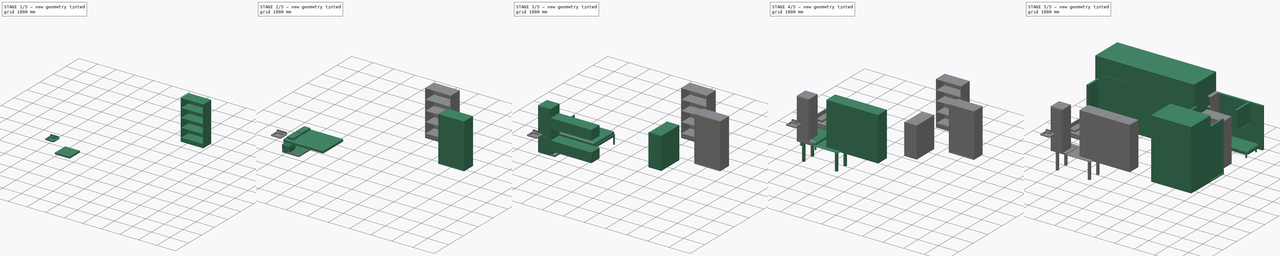
[diagram: build sequence overview — one tinted view per stage of 5, left to right]
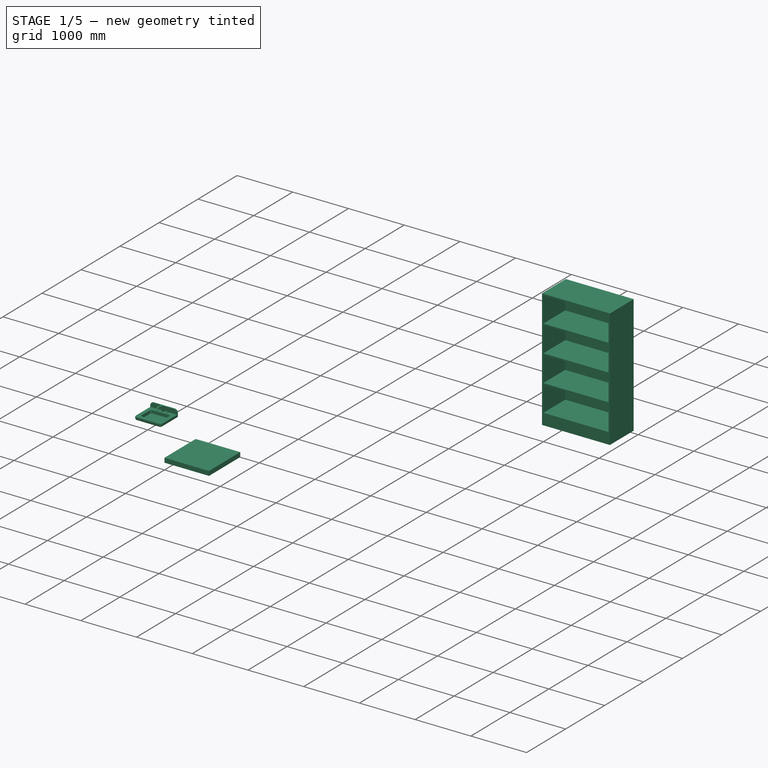
[diagram: stage 1 of 5 — iso view after this stage's code; geometry added in this stage tinted green]
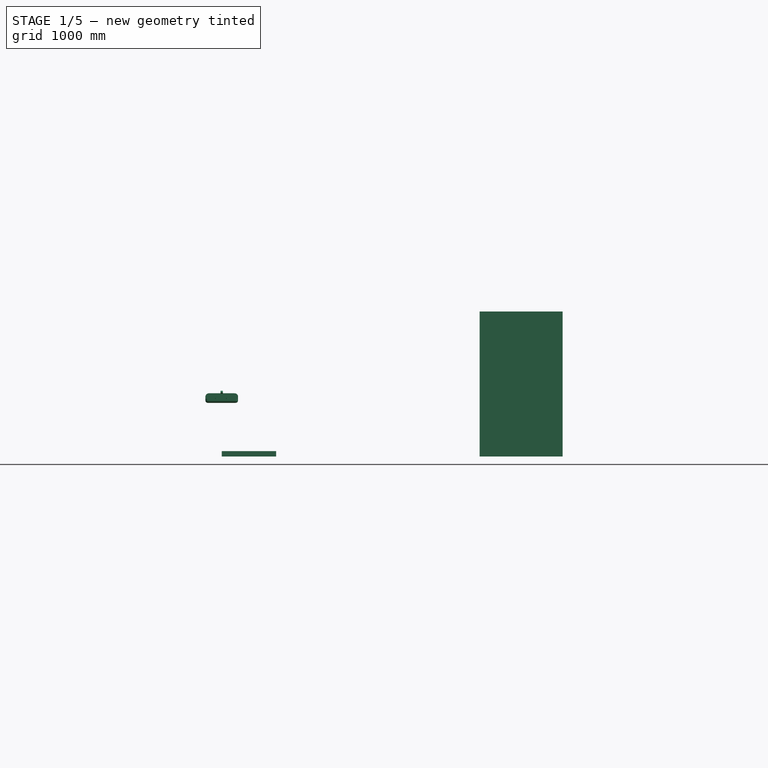
[diagram: stage 1 of 5 — front view after this stage's code; geometry added in this stage tinted green]
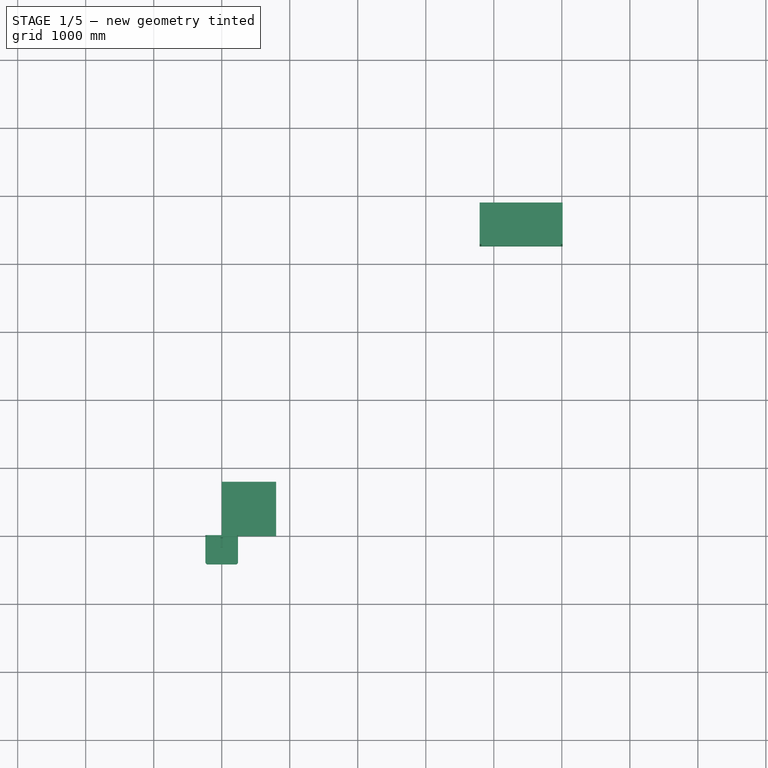
[diagram: stage 1 of 5 — top view after this stage's code; geometry added in this stage tinted green]
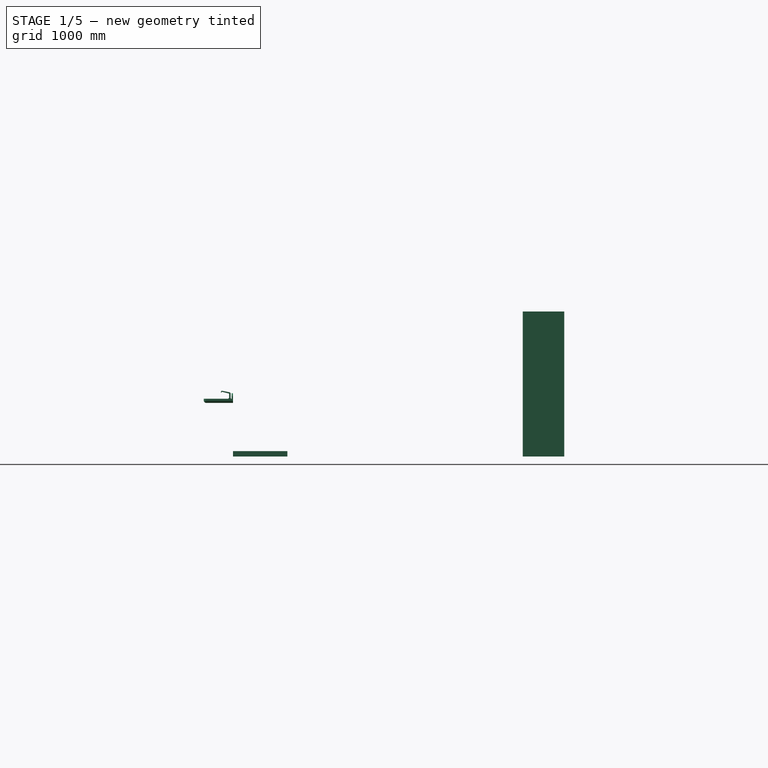
[diagram: stage 1 of 5 — right view after this stage's code; geometry added in this stage tinted green]
FCSTD DOCUMENT  (FreeCAD 0.18R16131 (Git))
Label: appart
License: All rights reserved
LicenseURL: http://en.wikipedia.org/wiki/All_rights_reserved
objects: Sketcher::SketchObject×31, Part::Box×23, PartDesign::Pad×19, Part::FeaturePython×17, PartDesign::Fillet×17, Part::Cut×10, PartDesign::Body×7, Part::Part2DObjectPython×6, Part::Fillet×3, PartDesign::Pocket×3, PartDesign::Plane×3, Part::MultiFuse×1, Part::Compound×1, PartDesign::LinearPattern×1, App::DocumentObjectGroup×1
note: 164 computed .brp shape members not serialized (recipe doc carries the construction recipe); baked Part::Feature solids carry a one-line shape summary decoded from their .brp

FEATURE [PartDesign::Body] Body010  label="WallHungToilet"
  Group = -> [Sketch194,Pad014,Fillet013,Sketch195,Fillet014,Pad015,Fillet015]
  Origin = -> Origin010
  Placement = pos=(1727,3999,0) rot=(0,0,1;4.71239rad)
  Tip = -> Fillet015
FEATURE [Sketcher::SketchObject] Sketch196  label="Sketch197"
  MapMode = 5
  Support = -> [XY_Plane011]
  sketch-geometry (4):
    g0: LineSegment StartX=0 StartY=0 StartZ=0 EndX=800 EndY=0 EndZ=0
    g1: LineSegment StartX=800 StartY=0 StartZ=0 EndX=800 EndY=800 EndZ=0
    g2: LineSegment StartX=800 StartY=800 StartZ=0 EndX=0 EndY=800 EndZ=0
    g3: LineSegment StartX=0 StartY=800 StartZ=0 EndX=0 EndY=0 EndZ=0
  constraints (11):
    c: Coincident(g0,g1)
    c: Coincident(g1,g2)
    c: Coincident(g2,g3)
    c: Coincident(g3,g0)
    c: Horizontal(g0)
    c: Horizontal(g2)
    c: Vertical(g1)
    c: Vertical(g3)
    c: Coincident(g0,g-1)
    c: DistanceX(g2,g2) = 800
    c: DistanceY(g3,g3) = 800
FEATURE [PartDesign::Pad] Pad016
  Length = 80
  Length2 = 100
  Profile = -> Sketch196
  Type = 0
FEATURE [PartDesign::Body] Body011  label="douche"
  Group = -> [Sketch196,Pad016,Sketch197,Pocket,Sketch198,Pocket001,Fillet016,Fillet017]
  Origin = -> BodyOrigin
  Placement = pos=(2438,4065,0) rot=(0,0,1;0rad)
  Tip = -> Fillet017
FEATURE [PartDesign::Plane] DatumPlane
  AttachmentOffset = pos=(0,0,850) rot=(0,0,1;0rad)
  Length = 571.913
  MapMode = 5
  Placement = pos=(0,0,850) rot=(0,0,1;0rad)
  ResizeMode = 0
  Support = -> [XY_Plane012]
  Width = 531.913
FEATURE [Sketcher::SketchObject] Sketch199  label="Sketch200"
  MapMode = 5
  Placement = pos=(0,0,850) rot=(0,0,1;0rad)
  Support = -> [DatumPlane]
  sketch-geometry (6):
    g0: LineSegment StartX=-240 StartY=0 StartZ=0 EndX=240 EndY=0 EndZ=0
    g1: LineSegment StartX=240 StartY=0 StartZ=0 EndX=240 EndY=-395 EndZ=0
    g2: ArcOfCircle CenterX=205 CenterY=-395 CenterZ=0 NormalX=0 NormalY=0 NormalZ=1 AngleXU=0 Radius=35 StartAngle=4.71239 EndAngle=6.28319
    g3: LineSegment StartX=205 StartY=-430 StartZ=0 EndX=-205 EndY=-430 EndZ=0
    g4: ArcOfCircle CenterX=-205 CenterY=-395 CenterZ=0 NormalX=0 NormalY=0 NormalZ=1 AngleXU=0 Radius=35 StartAngle=3.14159 EndAngle=4.71239
    g5: LineSegment StartX=-240 StartY=-395 StartZ=0 EndX=-240 EndY=0 EndZ=0
  constraints (16):
    c: Horizontal(g0)
    c: Coincident(g0,g1)
    c: Vertical(g1)
    c: Tangent(g1,g2) = 1.5708
    c: Tangent(g2,g3) = 1.5708
    c: Tangent(g3,g4) = 1.5708
    c: Tangent(g4,g5) = 1.5708
    c: Coincident(g5,g0)
    c: PointOnObject(g0,g-1)
    c: Vertical(g5)
    c: Horizontal(g3)
    c: Radius(g2) = 35
    c: Radius(g4) = 35
    c: DistanceX(g0,g-1) = 240
    c: DistanceX(g0,g0) = 480
    c: DistanceY(g3,g0) = 430
FEATURE [PartDesign::Pad] Pad017
  Length = 60
  Length2 = 100
  Placement = pos=(0,0,850) rot=(0,0,1;0rad)
  Profile = -> Sketch199
  Reversed = true
  Type = 0
FEATURE [PartDesign::Fillet] Fillet018
  Base = -> Pad017 [Edge13,Edge16,Edge18,Edge10,Edge7]
  BaseFeature = -> Pad017
  Placement = pos=(0,0,850) rot=(0,0,1;0rad)
  Radius = 35
FEATURE [Sketcher::SketchObject] Sketch200  label="Sketch201"
  MapMode = 5
  Placement = pos=(0,0,850) rot=(0,0,1;0rad)
  Support = -> [Fillet018]
  sketch-geometry (8):
    g0: LineSegment StartX=-140 StartY=-95 StartZ=0 EndX=140 EndY=-95 EndZ=0
    g1: ArcOfCircle CenterX=140 CenterY=-130 CenterZ=0 NormalX=0 NormalY=0 NormalZ=1 AngleXU=0 Radius=35 StartAngle=0 EndAngle=1.5708
    g2: LineSegment StartX=175 StartY=-130 StartZ=0 EndX=175 EndY=-330 EndZ=0
    g3: ArcOfCircle CenterX=140 CenterY=-330 CenterZ=0 NormalX=0 NormalY=0 NormalZ=1 AngleXU=0 Radius=35 StartAngle=4.71239 EndAngle=6.28319
    g4: LineSegment StartX=140 StartY=-365 StartZ=0 EndX=-140 EndY=-365 EndZ=0
    g5: ArcOfCircle CenterX=-140 CenterY=-330 CenterZ=0 NormalX=0 NormalY=0 NormalZ=1 AngleXU=0 Radius=35 StartAngle=3.14159 EndAngle=4.71239
    g6: LineSegment StartX=-175 StartY=-330 StartZ=0 EndX=-175 EndY=-130 EndZ=0
    g7: ArcOfCircle CenterX=-140 CenterY=-130 CenterZ=0 NormalX=0 NormalY=0 NormalZ=1 AngleXU=0 Radius=35 StartAngle=1.5708 EndAngle=3.14159
  constraints (21):
    c: Horizontal(g0)
    c: Tangent(g0,g1) = 1.5708
    c: Tangent(g1,g2) = 1.5708
    c: Tangent(g2,g3) = 1.5708
    c: Tangent(g3,g4) = 1.5708
    c: Tangent(g4,g5) = 1.5708
    c: Tangent(g5,g6) = 1.5708
    c: Tangent(g6,g7) = 1.5708
    c: Coincident(g7,g0)
    c: Vertical(g6)
    c: Horizontal(g4)
    c: Vertical(g2)
    c: Radius(g1) = 35
    c: Radius(g3) = 35
    c: Radius(g5) = 35
    c: Radius(g7) = 35
    c: DistanceX(g6,g1) = 350
    c: DistanceY(g4,g0) = 270
    c: DistanceY(g0,g-1) = 95
    c: DistanceX(g6,g-1) = 175
    c: Tangent(g7,g0,g0) = 1.5708
FEATURE [PartDesign::Pocket] Pocket002
  BaseFeature = -> Fillet018
  Length = 55
  Length2 = 100
  Placement = pos=(0,0,850) rot=(0,0,1;0rad)
  Profile = -> Sketch200
  Type = 0
FEATURE [Sketcher::SketchObject] Sketch201  label="Sketch202"
  MapMode = 5
  Placement = pos=(0,0,850) rot=(0,0,1;0rad)
  Support = -> [Pocket002]
  sketch-geometry (4):
    g0: LineSegment StartX=-240 StartY=0 StartZ=0 EndX=240 EndY=0 EndZ=0
    g1: LineSegment StartX=240 StartY=0 StartZ=0 EndX=240 EndY=-20 EndZ=0
    g2: LineSegment StartX=240 StartY=-20 StartZ=0 EndX=-240 EndY=-20 EndZ=0
    g3: LineSegment StartX=-240 StartY=-20 StartZ=0 EndX=-240 EndY=0 EndZ=0
  constraints (12):
    c: Coincident(g0,g1)
    c: Coincident(g1,g2)
    c: Coincident(g2,g3)
    c: Coincident(g3,g0)
    c: Horizontal(g0)
    c: Horizontal(g2)
    c: Vertical(g1)
    c: Vertical(g3)
    c: PointOnObject(g0,g-1)
    c: DistanceY(g3,g3) = 20
    c: DistanceX(g2,g2) = 480
    c: DistanceX(g0,g-1) = 240
FEATURE [PartDesign::Pad] Pad018
  BaseFeature = -> Pocket002
  Length = 80
  Length2 = 100
  Placement = pos=(0,0,850) rot=(0,0,1;0rad)
  Profile = -> Sketch201
  Type = 0
FEATURE [PartDesign::Fillet] Fillet019
  Base = -> Pad018 [Edge35,Edge64]
  BaseFeature = -> Pad018
  Placement = pos=(0,0,850) rot=(0,0,1;0rad)
  Radius = 50
FEATURE [Sketcher::SketchObject] Sketch202  label="Sketch203"
  MapMode = 5
  Placement = pos=(0,0,850) rot=(0,0,1;0rad)
  Support = -> [Fillet019]
  sketch-geometry (1):
    g0: Circle CenterX=-80 CenterY=-50 CenterZ=0 NormalX=0 NormalY=0 NormalZ=1 AngleXU=0 Radius=18
  constraints (3):
    c: DistanceX(g0) = -80
    c: DistanceY(g0) = -50
    c: Radius(g0) = 18
FEATURE [PartDesign::Pad] Pad019
  BaseFeature = -> Fillet019
  Length = 10
  Length2 = 100
  Placement = pos=(0,0,850) rot=(0,0,1;0rad)
  Profile = -> Sketch202
  Type = 0
FEATURE [PartDesign::LinearPattern] LinearPattern
  BaseFeature = -> Pad019
  Direction = -> Sketch202 [H_Axis]
  Length = 160
  Occurrences = 2
  Originals = -> [Pad019]
  Placement = pos=(0,0,850) rot=(0,0,1;0rad)
FEATURE [PartDesign::Plane] DatumPlane001
  Length = 616.985
  MapMode = 5
  Placement = pos=(0,0,850) rot=(0,0.707107,0.707107;3.14159rad)
  ResizeMode = 0
  Support = -> [LinearPattern]
  Width = 1114.32
FEATURE [Sketcher::SketchObject] Sketch203  label="Sketch204"
  MapMode = 5
  Placement = pos=(0,0,850) rot=(0,0.707107,0.707107;3.14159rad)
  Support = -> [DatumPlane001]
  sketch-geometry (1):
    g0: Circle CenterX=0 CenterY=-140 CenterZ=0 NormalX=0 NormalY=0 NormalZ=1 AngleXU=0 Radius=25
  constraints (3):
    c: PointOnObject(g0,g-2)
    c: Radius(g0) = 25
    c: DistanceY(g0,g-1) = 140
FEATURE [Sketcher::SketchObject] Sketch204  label="Sketch205"
  MapMode = 5
  Placement = pos=(0,0,0) rot=(0.57735,0.57735,0.57735;2.0944rad)
  Support = -> [YZ_Plane012]
  sketch-geometry (4):
    g0: LineSegment StartX=0 StartY=690 StartZ=0 EndX=-47.5 EndY=690 EndZ=0
    g1: LineSegment StartX=-47.5 StartY=690 StartZ=0 EndX=-47.5 EndY=611.5 EndZ=0
    g2: ArcOfCircle CenterX=-107.5 CenterY=611.5 CenterZ=0 NormalX=0 NormalY=0 NormalZ=1 AngleXU=0 Radius=60 StartAngle=3.14159 EndAngle=6.28319
    g3: LineSegment StartX=-167.5 StartY=611.5 StartZ=0 EndX=-167.5 EndY=801.5 EndZ=0
  constraints (12):
    c: Horizontal(g0)
    c: Coincident(g0,g1)
    c: Vertical(g1)
    c: Tangent(g1,g2) = 1.5708
    c: Tangent(g2,g3) = 1.5708
    c: Vertical(g3)
    c: DistanceY(g-1,g0) = 690
    c: Radius(g2) = 60
    c: PointOnObject(g0,g-2)
    c: DistanceX(g0,g0) = 47.5
    c: DistanceY(g1,g1) = 78.5
    c: DistanceY(g3,g3) = 190
FEATURE [PartDesign::Plane] DatumPlane002
  AttachmentOffset = pos=(0,0,17) rot=(0,0,1;0rad)
  Length = 571.153
  MapMode = 5
  Placement = pos=(17,0,0) rot=(0.57735,0.57735,0.57735;2.0944rad)
  ResizeMode = 0
  Support = -> [YZ_Plane012]
  Width = 1108.49
FEATURE [Sketcher::SketchObject] Sketch205  label="Sketch206"
  MapMode = 5
  Placement = pos=(17,0,0) rot=(0.57735,0.57735,0.57735;2.0944rad)
  Support = -> [DatumPlane002]
  sketch-geometry (10):
    g0: LineSegment StartX=-35 StartY=850 StartZ=0 EndX=-35 EndY=928.466 EndZ=0
    g1: ArcOfCircle CenterX=-52.5219 CenterY=928.466 CenterZ=0 NormalX=0 NormalY=0 NormalZ=1 AngleXU=0 Radius=17.5219 StartAngle=0 EndAngle=1.38342
    g2: LineSegment StartX=-49.258 StartY=945.681 StartZ=0 EndX=-162.646 EndY=967.179 EndZ=0
    g3: ArcOfCircle CenterX=-164.465 CenterY=957.586 CenterZ=0 NormalX=0 NormalY=0 NormalZ=1 AngleXU=0 Radius=9.7644 StartAngle=1.38342 EndAngle=2.81076
    g4: LineSegment StartX=-173.699 StartY=960.757 StartZ=0 EndX=-180.021 EndY=942.353 EndZ=0
    g5: LineSegment StartX=-180.021 StartY=942.353 StartZ=0 EndX=-169.633 EndY=938.785 EndZ=0
    g6: LineSegment StartX=-169.633 StartY=938.785 StartZ=0 EndX=-164.783 EndY=952.907 EndZ=0
    g7: LineSegment StartX=-164.783 StartY=952.907 StartZ=0 EndX=-56.839 EndY=925.531 EndZ=0
    g8: LineSegment StartX=-56.839 StartY=925.531 StartZ=0 EndX=-56.839 EndY=850 EndZ=0
    g9: LineSegment StartX=-56.839 StartY=850 StartZ=0 EndX=-35 EndY=850 EndZ=0
  constraints (15):
    c: Vertical(g0)
    c: Tangent(g0,g1) = -1.5708
    c: Tangent(g1,g2) = -1.5708
    c: Tangent(g2,g3) = -1.5708
    c: Tangent(g3,g4) = -1.5708
    c: Perpendicular(g4,g5) = 1.5708
    c: Perpendicular(g5,g6) = 1.5708
    c: Coincident(g6,g7)
    c: Coincident(g7,g8)
    c: Vertical(g8)
    c: Coincident(g9,g8)
    c: Coincident(g9,g0)
    c: Horizontal(g9)
    c: DistanceX(g0) = -35
    c: DistanceY(g0) = 850
FEATURE [PartDesign::Pad] Pad020
  BaseFeature = -> LinearPattern
  Length = 36
  Length2 = 100
  Placement = pos=(0,0,850) rot=(0,0,1;0rad)
  Profile = -> Sketch205
  Reversed = true
  Type = 0
FEATURE [PartDesign::Body] Body012  label="evier"
  Group = -> [DatumPlane,Sketch199,Pad017,Fillet018,Sketch200,Pocket002,Sketch201,Pad018,Fillet019,Sketch202,Pad019,LinearPattern,DatumPlane001,Sketch203,Sketch204,DatumPlane002,Sketch205,Pad020]
  Origin = -> BodyOrigin001
  Placement = pos=(3482,4912,0) rot=(0,0,1;0rad)
FEATURE [Part::Box] Box018  label="Cube018"
  AttacherType = Attacher::AttachEngine3D
  Height = 2133.6
  Length = 1219.2
  Width = 609.6
FEATURE [Part::Box] Box019  label="Cube019"
  AttacherType = Attacher::AttachEngine3D
  Height = 457.2
  Length = 1168.4
  Placement = pos=(25.4,0,1168.4) rot=(0,0,1;0rad)
  Width = 558.8
FEATURE [Part::Cut] Cut006
  Base = -> Box018
  Tool = -> Box019
FEATURE [Part::Box] Box020  label="Cube020"
  AttacherType = Attacher::AttachEngine3D
  Height = 457.2
  Length = 1168.4
  Placement = pos=(25.4,0,203.2) rot=(0,0,1;0rad)
  Width = 558.8
FEATURE [Part::Box] Box021  label="Cube021"
  AttacherType = Attacher::AttachEngine3D
  Height = 457.2
  Length = 1168.4
  Placement = pos=(25.4,0,685.8) rot=(0,0,1;0rad)
  Width = 558.8
FEATURE [Part::Box] Box022  label="Cube022"
  AttacherType = Attacher::AttachEngine3D
  Height = 457.2
  Length = 1168.4
  Placement = pos=(25.4,0,1651) rot=(0,0,1;0rad)
  Width = 558.8
FEATURE [Part::Cut] Cut007
  Base = -> Cut006
  Tool = -> Box020
FEATURE [Part::Cut] Cut008
  Base = -> Cut007
  Tool = -> Box021
FEATURE [Part::Cut] Cut009
  Base = -> Cut008
  Placement = pos=(3792,4261,0) rot=(0,0,1;0rad)
  Tool = -> Box022
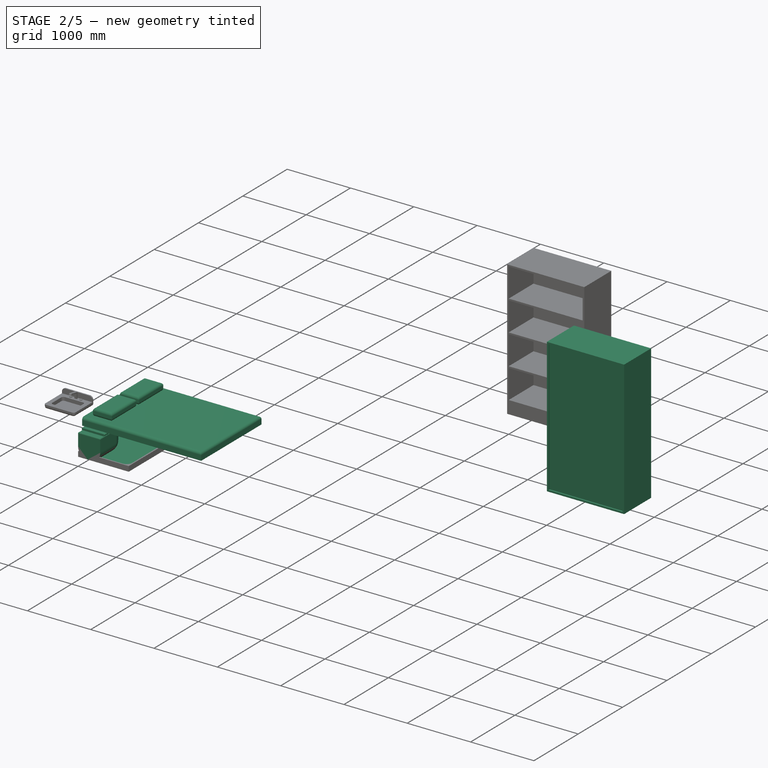
[diagram: stage 2 of 5 — iso view after this stage's code; geometry added in this stage tinted green]
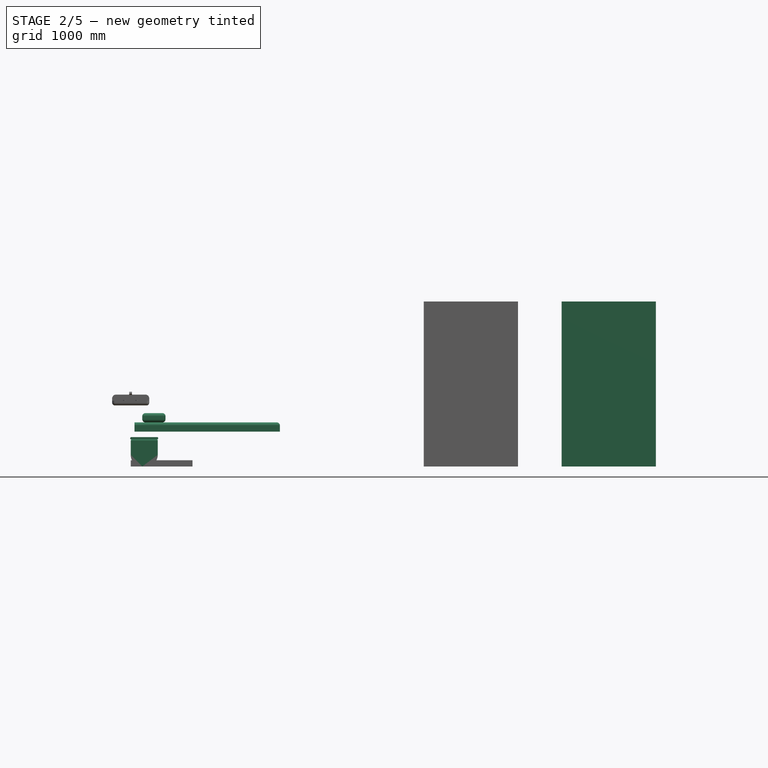
[diagram: stage 2 of 5 — front view after this stage's code; geometry added in this stage tinted green]
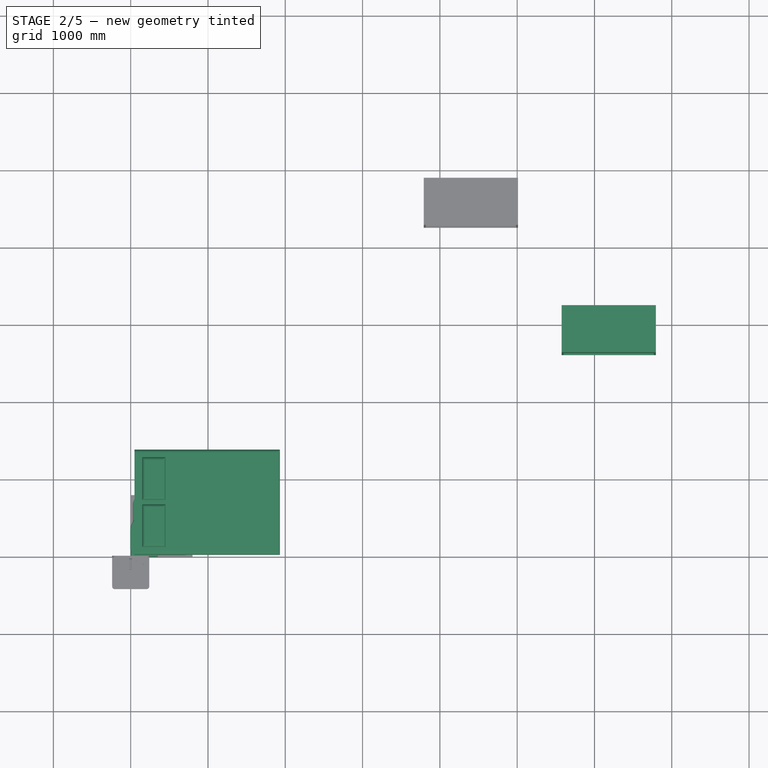
[diagram: stage 2 of 5 — top view after this stage's code; geometry added in this stage tinted green]
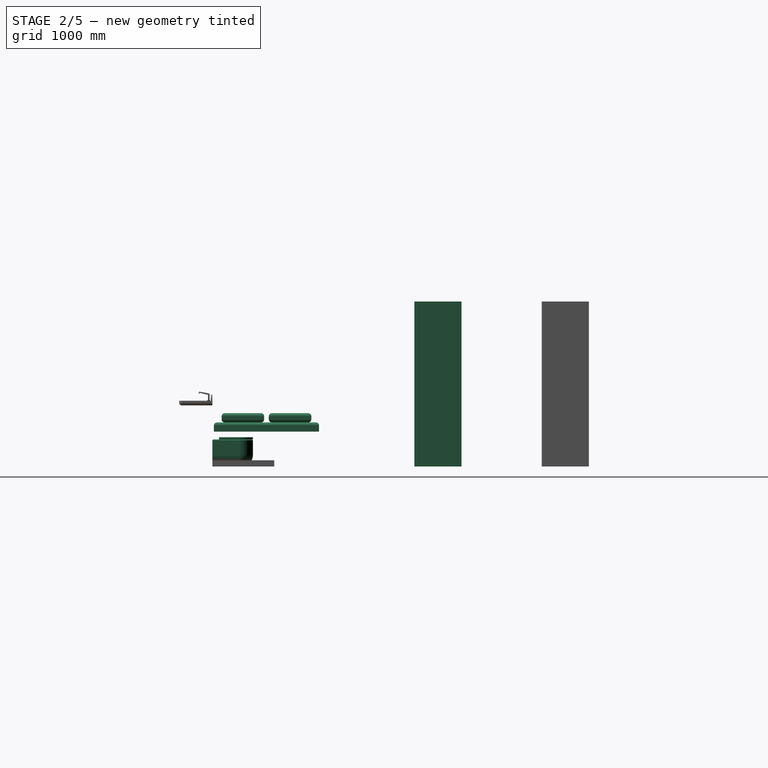
[diagram: stage 2 of 5 — right view after this stage's code; geometry added in this stage tinted green]
FEATURE [Part::Box] Box012  label="Cube012"
  AttacherType = Attacher::AttachEngine3D
  Height = 120
  Length = 1880
  Placement = pos=(50,20,450) rot=(0,0,1;0rad)
  Width = 1360
FEATURE [Part::Box] Box014  label="Cube014"
  AttacherType = Attacher::AttachEngine3D
  Height = 120
  Length = 300
  Placement = pos=(150,120,570) rot=(0,0,1;0rad)
  Width = 550
FEATURE [Part::Box] Box015  label="Cube015"
  AttacherType = Attacher::AttachEngine3D
  Height = 120
  Length = 300
  Placement = pos=(150,730,570) rot=(0,0,1;0rad)
  Width = 550
FEATURE [Part::Fillet] Fillet011
  Base = -> Box012
  Edges = 3 edges r=40: [Edge6,Edge10,Edge12]
FEATURE [Part::Fillet] Fillet012
  Base = -> Box014
  Edges = 8 edges r=40: [Edge2,Edge4,Edge6,Edge8,Edge9,Edge10,Edge11,Edge12]
FEATURE [Part::Fillet] Fillet002
  Base = -> Box015
  Edges = 8 edges r=40: [Edge2,Edge4,Edge6,Edge8,Edge9,Edge10,Edge11,Edge12]
FEATURE [Part::Box] Box016  label="Cube016"
  AttacherType = Attacher::AttachEngine3D
  Height = 2133.6
  Length = 1219.2
  Width = 609.6
FEATURE [Part::Box] Box017  label="Cube017"
  AttacherType = Attacher::AttachEngine3D
  Height = 2082.8
  Length = 1168.4
  Placement = pos=(25.4,0,25.4) rot=(0,0,1;0rad)
  Width = 25.4
FEATURE [Part::Cut] Cut005
  Base = -> Box016
  Placement = pos=(5575,2613,0) rot=(0,0,1;0rad)
  Tool = -> Box017
FEATURE [Sketcher::SketchObject] Sketch194  label="Sketch195"
  MapMode = 5
  Support = -> [XY_Plane010]
  sketch-geometry (5):
    g0: LineSegment StartX=0 StartY=350 StartZ=0 EndX=0 EndY=0 EndZ=0
    g1: LineSegment StartX=0 StartY=0 StartZ=0 EndX=350 EndY=0 EndZ=0
    g2: LineSegment StartX=350 StartY=0 StartZ=0 EndX=350 EndY=350 EndZ=0
    g3: ArcOfCircle CenterX=175 CenterY=350 CenterZ=0 NormalX=0 NormalY=0 NormalZ=1 AngleXU=0 Radius=175 StartAngle=-6.2e-15 EndAngle=3.14159
    g4: LineSegment [constr] StartX=0 StartY=350 StartZ=0 EndX=175 EndY=350 EndZ=0
  constraints (14):
    c: Vertical(g0)
    c: Coincident(g0,g1)
    c: Horizontal(g1)
    c: Coincident(g1,g2)
    c: Vertical(g2)
    c: DistanceY(g0,g0) = 350
    c: DistanceX(g1,g1) = 350
    c: Equal(g2,g0)
    c: Coincident(g3,g0)
    c: Coincident(g3,g2)
    c: Coincident(g0,g-1)
    c: Coincident(g4,g0)
    c: Horizontal(g4)
    c: Coincident(g3,g4)
FEATURE [PartDesign::Pad] Pad014
  Length = 350
  Length2 = 100
  Profile = -> Sketch194
  Type = 0
FEATURE [PartDesign::Fillet] Fillet013
  Base = -> Pad014 [Edge9,Edge11,Edge3]
  BaseFeature = -> Pad014
  Radius = 150
FEATURE [Sketcher::SketchObject] Sketch195  label="Sketch196"
  MapMode = 5
  Placement = pos=(0,0,350) rot=(0,0,1;0rad)
  Support = -> [Fillet013]
  sketch-geometry (4):
    g0: LineSegment StartX=-5 StartY=85 StartZ=0 EndX=355 EndY=85 EndZ=0
    g1: LineSegment StartX=-5 StartY=85 StartZ=0 EndX=-5 EndY=345 EndZ=0
    g2: LineSegment StartX=355 StartY=85 StartZ=0 EndX=355 EndY=345 EndZ=0
    g3: ArcOfCircle CenterX=175 CenterY=345 CenterZ=0 NormalX=0 NormalY=0 NormalZ=1 AngleXU=0 Radius=180 StartAngle=0 EndAngle=3.14159
  constraints (13):
    c: Horizontal(g0)
    c: DistanceX(g0) = -5
    c: DistanceY(g0) = 85
    c: DistanceY(g1,g1) = 260
    c: Equal(g2,g1)
    c: Coincident(g3,g2)
    c: DistanceX(g3) = 175
    c: Coincident(g1,g3)
    c: Coincident(g0,g2)
    c: Coincident(g0,g1)
    c: DistanceX(g0,g0) = 360
    c: Radius(g3) = 180
    c: Horizontal(g3,g1)
FEATURE [PartDesign::Fillet] Fillet014
  Base = -> Fillet013 [Face4]
  BaseFeature = -> Fillet013
  Radius = 15
FEATURE [PartDesign::Pad] Pad015
  BaseFeature = -> Fillet014
  Length = 30
  Length2 = 100
  Profile = -> Sketch195
  Type = 0
FEATURE [PartDesign::Fillet] Fillet015
  Base = -> Pad015 [Face16,Face15,Face17]
  BaseFeature = -> Pad015
  Radius = 10
FEATURE [Sketcher::SketchObject] Sketch197  label="Sketch198"
  ExternalGeometry = -> [Pad016]
  MapMode = 5
  Placement = pos=(0,0,80) rot=(0,0,1;0rad)
  Support = -> [Pad016]
  sketch-geometry (8):
    g0: LineSegment StartX=30 StartY=110 StartZ=0 EndX=30 EndY=690 EndZ=0
    g1: ArcOfCircle CenterX=110 CenterY=690 CenterZ=0 NormalX=0 NormalY=0 NormalZ=1 AngleXU=0 Radius=80 StartAngle=1.5708 EndAngle=3.14159
    g2: LineSegment StartX=110 StartY=770 StartZ=0 EndX=690 EndY=770 EndZ=0
    g3: ArcOfCircle CenterX=690 CenterY=690 CenterZ=0 NormalX=0 NormalY=0 NormalZ=1 AngleXU=0 Radius=80 StartAngle=0 EndAngle=1.5708
    g4: LineSegment StartX=770 StartY=690 StartZ=0 EndX=770 EndY=110 EndZ=0
    g5: ArcOfCircle CenterX=690 CenterY=110 CenterZ=0 NormalX=0 NormalY=0 NormalZ=1 AngleXU=0 Radius=80 StartAngle=4.71239 EndAngle=6.28319
    g6: LineSegment StartX=690 StartY=30 StartZ=0 EndX=110 EndY=30 EndZ=0
    g7: ArcOfCircle CenterX=110 CenterY=110 CenterZ=0 NormalX=0 NormalY=0 NormalZ=1 AngleXU=0 Radius=80 StartAngle=3.14159 EndAngle=4.71239
  constraints (21):
    c: Vertical(g0)
    c: Tangent(g0,g1) = 1.5708
    c: Tangent(g1,g2) = 1.5708
    c: Tangent(g2,g3) = 1.5708
    c: Tangent(g3,g4) = 1.5708
    c: Tangent(g4,g5) = 1.5708
    c: Tangent(g5,g6) = 1.5708
    c: Tangent(g6,g7) = 1.5708
    c: Coincident(g0,g7)
    c: Horizontal(g6)
    c: Horizontal(g2)
    c: Vertical(g4)
    c: DistanceX(g-1,g0) = 30
    c: DistanceX(g4,g-4) = 30
    c: DistanceY(g-1,g6) = 30
    c: DistanceY(g1,g-3) = 30
    c: Radius(g1) = 80
    c: Radius(g3) = 80
    c: Radius(g5) = 80
    c: Radius(g7) = 80
    c: Tangent(g0,g7,g0) = 1.5708
FEATURE [PartDesign::Pocket] Pocket
  BaseFeature = -> Pad016
  Length = 60
  Length2 = 100
  Profile = -> Sketch197
  Type = 0
FEATURE [Sketcher::SketchObject] Sketch198  label="Sketch199"
  ExternalGeometry = -> [Pocket]
  MapMode = 5
  Placement = pos=(0,0,20) rot=(0,0,1;0rad)
  Support = -> [Pocket]
  sketch-geometry (1):
    g0: Circle CenterX=150 CenterY=150 CenterZ=0 NormalX=0 NormalY=0 NormalZ=1 AngleXU=0 Radius=50
  constraints (3):
    c: DistanceY(g-3,g0) = 40
    c: DistanceX(g-3,g0) = 120
    c: Radius(g0) = 50
FEATURE [PartDesign::Pocket] Pocket001
  BaseFeature = -> Pocket
  Length = 20
  Length2 = 100
  Profile = -> Sketch198
  Type = 0
FEATURE [PartDesign::Fillet] Fillet016
  Base = -> Pocket001 [Edge32,Edge29,Edge28,Edge25,Edge39,Edge37,Edge36,Edge33]
  BaseFeature = -> Pocket001
  Radius = 15
FEATURE [PartDesign::Fillet] Fillet017
  Base = -> Fillet016 [Edge17,Edge16,Edge15,Edge6,Edge20,Edge19,Edge18]
  BaseFeature = -> Fillet016
  Radius = 15
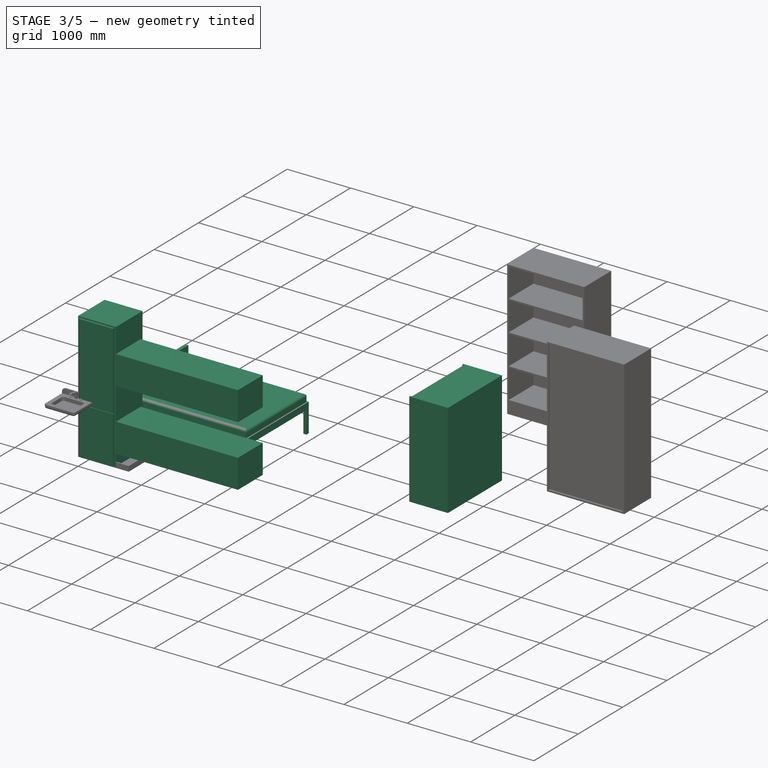
[diagram: stage 3 of 5 — iso view after this stage's code; geometry added in this stage tinted green]
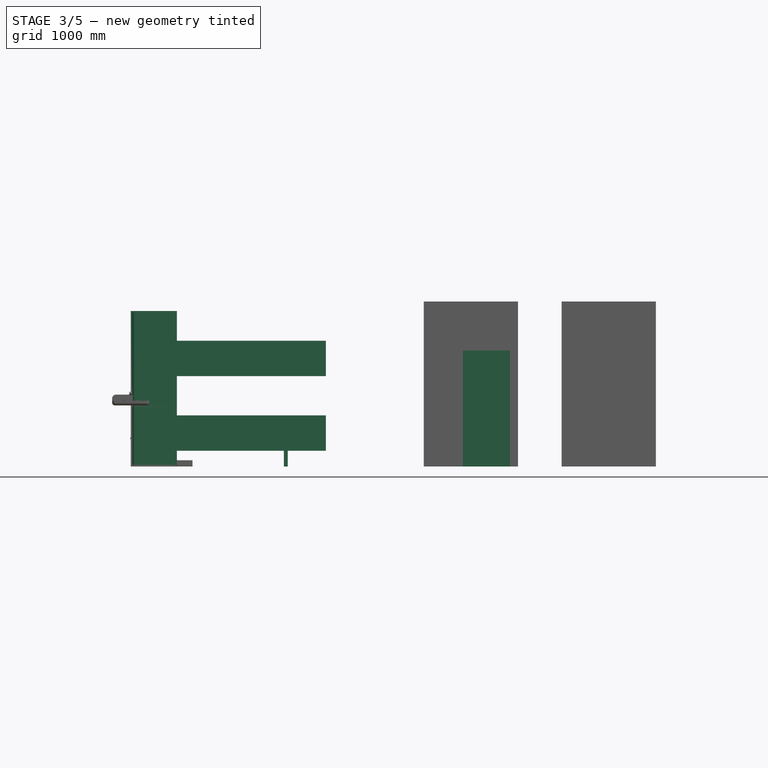
[diagram: stage 3 of 5 — front view after this stage's code; geometry added in this stage tinted green]
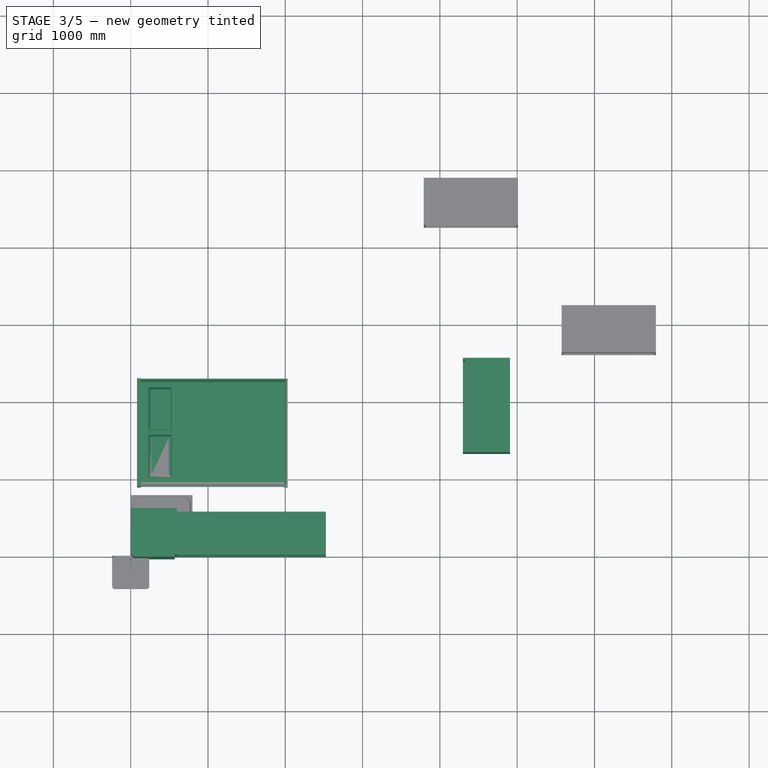
[diagram: stage 3 of 5 — top view after this stage's code; geometry added in this stage tinted green]
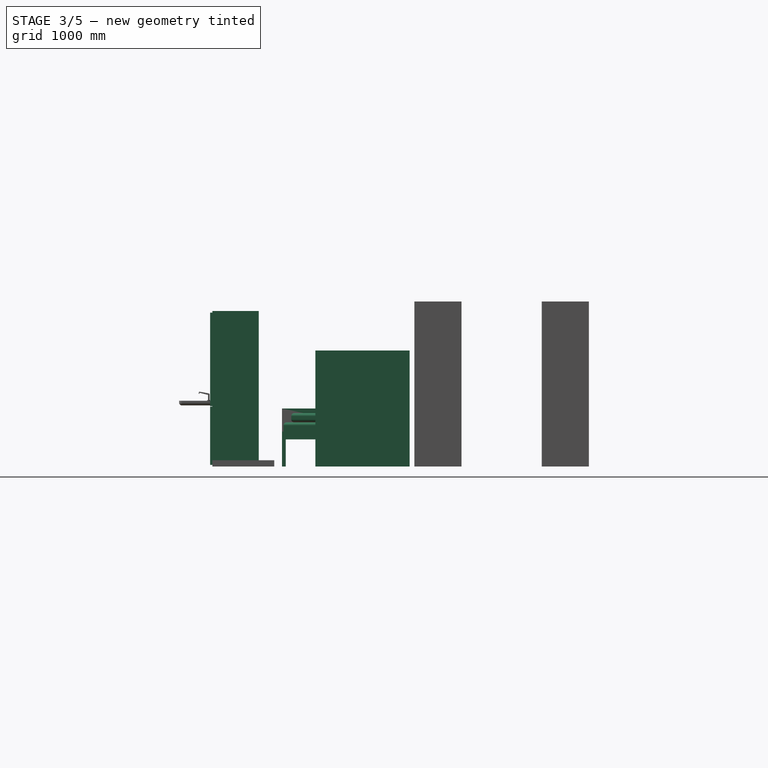
[diagram: stage 3 of 5 — right view after this stage's code; geometry added in this stage tinted green]
FEATURE [Part::Box] Box001  label="Cube001"
  AttacherType = Attacher::AttachEngine3D
  Height = 457.2
  Length = 2500
  Placement = pos=(25.4,0,1168.4) rot=(0,0,1;0rad)
  Width = 558.8
FEATURE [Part::Box] Box002  label="Cube002"
  AttacherType = Attacher::AttachEngine3D
  Height = 457.2
  Length = 2500
  Placement = pos=(25.4,0,203.2) rot=(0,0,1;0rad)
  Width = 558.8
FEATURE [Sketcher::SketchObject] Sketch191  label="Sketch192"
  MapMode = 5
  Support = -> [XY_Plane009]
  sketch-geometry (4):
    g0: LineSegment StartX=0 StartY=0 StartZ=0 EndX=597 EndY=0 EndZ=0
    g1: LineSegment StartX=597 StartY=0 StartZ=0 EndX=597 EndY=600 EndZ=0
    g2: LineSegment StartX=597 StartY=600 StartZ=0 EndX=0 EndY=600 EndZ=0
    g3: LineSegment StartX=0 StartY=600 StartZ=0 EndX=0 EndY=0 EndZ=0
  constraints (11):
    c: Coincident(g0,g1)
    c: Coincident(g1,g2)
    c: Coincident(g2,g3)
    c: Coincident(g3,g0)
    c: Horizontal(g0)
    c: Horizontal(g2)
    c: Vertical(g1)
    c: Vertical(g3)
    c: Coincident(g0,g-1)
    c: DistanceX(g0,g0) = 597
    c: DistanceY(g1,g1) = 600
FEATURE [PartDesign::Pad] Pad011
  Length = 2011
  Length2 = 100
  Profile = -> Sketch191
  Type = 0
FEATURE [Sketcher::SketchObject] Sketch192  label="Sketch193"
  MapMode = 5
  Placement = pos=(0,0,0) rot=(1,0,0;1.5708rad)
  Support = -> [Pad011]
  sketch-geometry (4):
    g0: LineSegment StartX=20 StartY=1990 StartZ=0 EndX=570 EndY=1990 EndZ=0
    g1: LineSegment StartX=570 StartY=1990 StartZ=0 EndX=570 EndY=780 EndZ=0
    g2: LineSegment StartX=570 StartY=780 StartZ=0 EndX=20 EndY=780 EndZ=0
    g3: LineSegment StartX=20 StartY=780 StartZ=0 EndX=20 EndY=1990 EndZ=0
  constraints (12):
    c: Coincident(g0,g1)
    c: Coincident(g1,g2)
    c: Coincident(g2,g3)
    c: Coincident(g3,g0)
    c: Horizontal(g0)
    c: Horizontal(g2)
    c: Vertical(g1)
    c: Vertical(g3)
    c: DistanceX(g2,g2) = 550
    c: DistanceY(g1,g1) = 1210
    c: DistanceX(g2) = 20
    c: DistanceY(g2) = 780
FEATURE [PartDesign::Pad] Pad012
  BaseFeature = -> Pad011
  Length = 30
  Length2 = 100
  Profile = -> Sketch192
  Type = 0
FEATURE [PartDesign::Fillet] Fillet010
  Base = -> Pad012 [Edge24]
  BaseFeature = -> Pad012
  Radius = 29
FEATURE [Sketcher::SketchObject] Sketch193  label="Sketch194"
  MapMode = 5
  Placement = pos=(0,0,0) rot=(1,0,0;1.5708rad)
  Support = -> [Fillet010]
  sketch-geometry (4):
    g0: LineSegment StartX=20 StartY=20 StartZ=0 EndX=570 EndY=20 EndZ=0
    g1: LineSegment StartX=570 StartY=20 StartZ=0 EndX=570 EndY=774 EndZ=0
    g2: LineSegment StartX=570 StartY=774 StartZ=0 EndX=20 EndY=774 EndZ=0
    g3: LineSegment StartX=20 StartY=774 StartZ=0 EndX=20 EndY=20 EndZ=0
  constraints (12):
    c: Coincident(g0,g1)
    c: Coincident(g1,g2)
    c: Coincident(g2,g3)
    c: Coincident(g3,g0)
    c: Horizontal(g0)
    c: Horizontal(g2)
    c: Vertical(g1)
    c: Vertical(g3)
    c: DistanceX(g2,g2) = 550
    c: DistanceY(g3,g3) = 754
    c: DistanceX(g0) = 20
    c: DistanceY(g0) = 20
FEATURE [PartDesign::Pad] Pad013
  BaseFeature = -> Fillet010
  Length = 30
  Length2 = 100
  Profile = -> Sketch193
  Type = 0
FEATURE [PartDesign::Fillet] Fillet001
  Base = -> Pad013 [Edge34]
  BaseFeature = -> Pad013
  Radius = 29
FEATURE [PartDesign::Body] Body009  label="Fridge_600x600x2000mm"
  Group = -> [Sketch191,Pad011,Sketch192,Pad012,Fillet010,Sketch193,Pad013,Fillet001]
  Origin = -> Origin009
  Placement = pos=(5320,1850,0) rot=(0,0,1;0rad)
  Tip = -> Fillet001
FEATURE [Part::Box] Box005  label="Cube005"
  AttacherType = Attacher::AttachEngine3D
  Height = 1500
  Length = 1219.2
  Width = 609.6
FEATURE [Part::Box] Box006  label="Cube006"
  AttacherType = Attacher::AttachEngine3D
  Height = 1500
  Length = 1168.4
  Placement = pos=(25.4,0,25.4) rot=(0,0,1;0rad)
  Width = 25.4
FEATURE [Part::Cut] Cut004
  Base = -> Box005
  Placement = pos=(4298,2552,0) rot=(0,0,1;4.71239rad)
  Tool = -> Box006
FEATURE [Part::Box] Box007  label="Cube007"
  AttacherType = Attacher::AttachEngine3D
  Height = 350
  Length = 50
  Placement = pos=(0,1350,0) rot=(0,0,1;0rad)
  Width = 50
FEATURE [Part::Box] Box008  label="Cube008"
  AttacherType = Attacher::AttachEngine3D
  Height = 350
  Length = 50
  Width = 50
FEATURE [Part::Box] Box009  label="Cube009"
  AttacherType = Attacher::AttachEngine3D
  Height = 350
  Length = 50
  Placement = pos=(1900,0,0) rot=(0,0,1;0rad)
  Width = 50
FEATURE [Part::Box] Box010  label="Cube010"
  AttacherType = Attacher::AttachEngine3D
  Height = 350
  Length = 50
  Placement = pos=(1900,1350,0) rot=(0,0,1;0rad)
  Width = 50
FEATURE [Part::Box] Box011  label="Cube011"
  AttacherType = Attacher::AttachEngine3D
  Height = 100
  Length = 1950
  Placement = pos=(0,0,350) rot=(0,0,1;0rad)
  Width = 1400
FEATURE [Part::Box] Box013  label="Cube013"
  AttacherType = Attacher::AttachEngine3D
  Height = 300
  Length = 50
  Placement = pos=(0,0,450) rot=(0,0,1;0rad)
  Width = 1400
FEATURE [Part::Compound] Compound
  Links = -> [Box007,Fillet011,Fillet002,Box011,Fillet012,Box010,Box009,Box013,Box008]
  Placement = pos=(82,900,0) rot=(0,0,1;0rad)
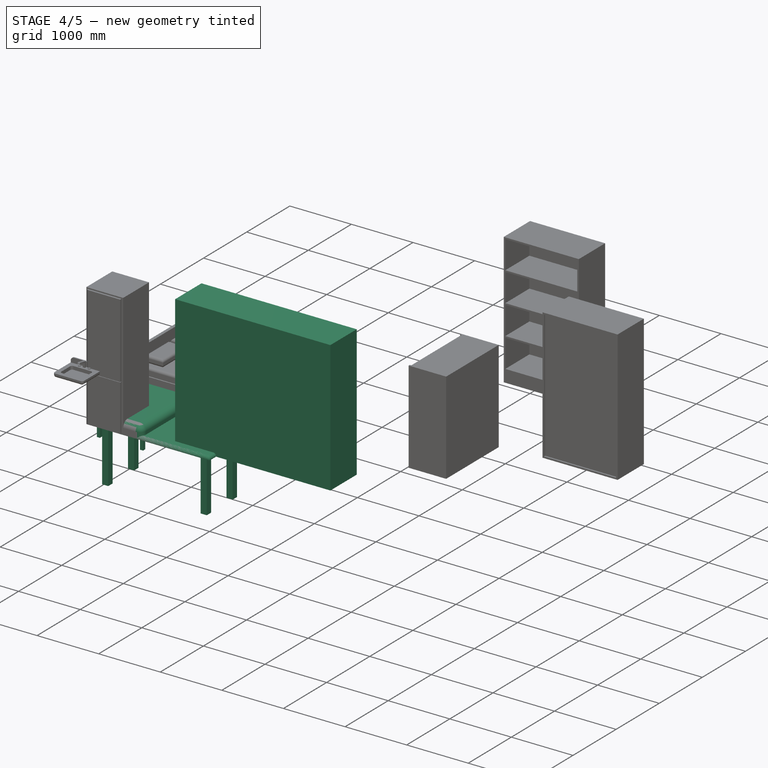
[diagram: stage 4 of 5 — iso view after this stage's code; geometry added in this stage tinted green]
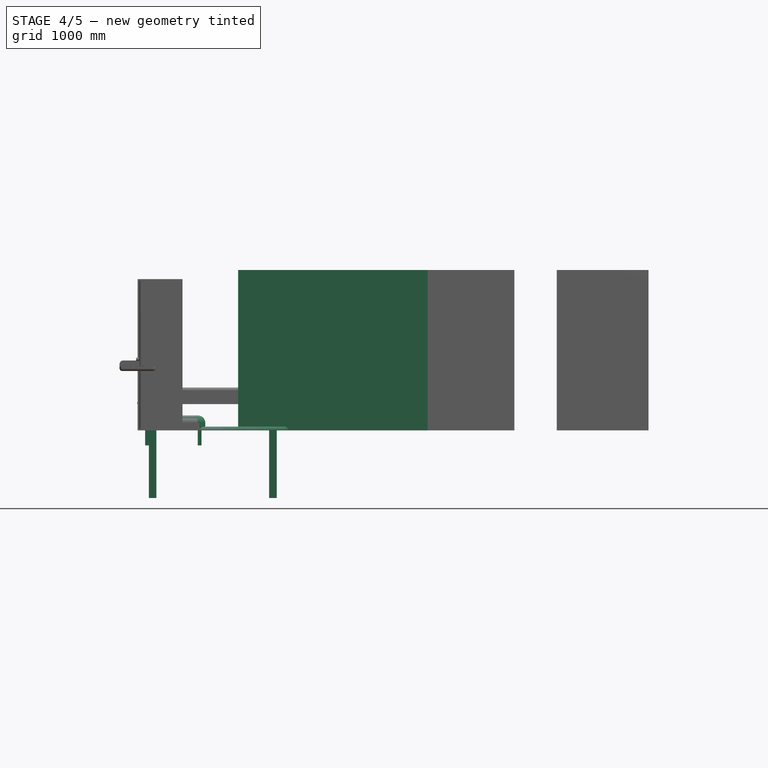
[diagram: stage 4 of 5 — front view after this stage's code; geometry added in this stage tinted green]
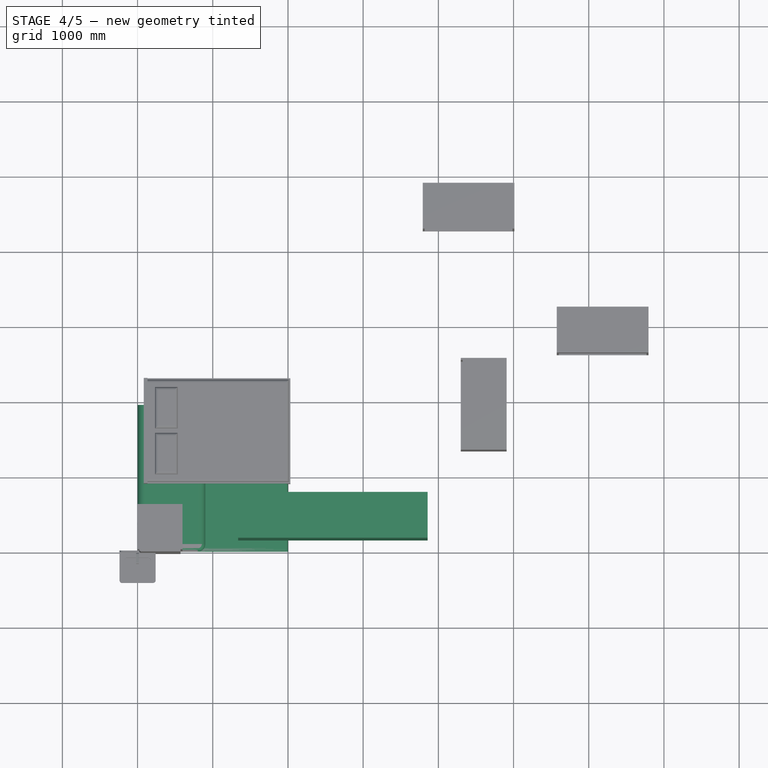
[diagram: stage 4 of 5 — top view after this stage's code; geometry added in this stage tinted green]
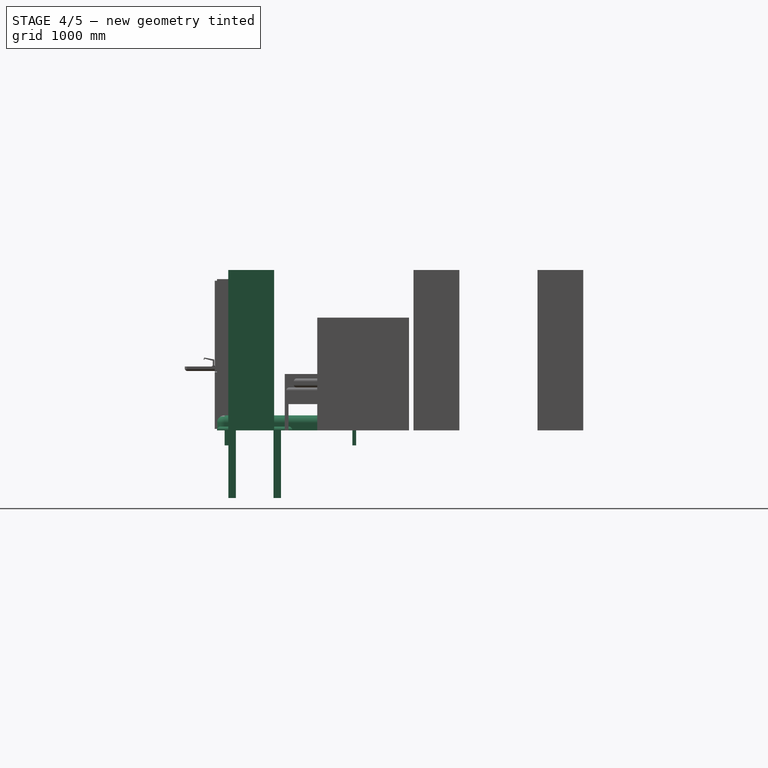
[diagram: stage 4 of 5 — right view after this stage's code; geometry added in this stage tinted green]
FEATURE [Sketcher::SketchObject] Sketch185  label="Sketch186"
  MapMode = 5
  Support = -> [XY_Plane007]
  sketch-geometry (4):
    g0: LineSegment StartX=-32.9455 StartY=2041.16 StartZ=0 EndX=917.055 EndY=2041.16 EndZ=0
    g1: LineSegment StartX=917.055 StartY=2041.16 StartZ=0 EndX=917.055 EndY=1961.16 EndZ=0
    g2: LineSegment StartX=917.055 StartY=1961.16 StartZ=0 EndX=-32.9455 EndY=1961.16 EndZ=0
    g3: LineSegment StartX=-32.9455 StartY=1961.16 StartZ=0 EndX=-32.9455 EndY=2041.16 EndZ=0
  constraints (10):
    c: Coincident(g0,g1)
    c: Coincident(g1,g2)
    c: Coincident(g2,g3)
    c: Coincident(g3,g0)
    c: Horizontal(g0)
    c: Horizontal(g2)
    c: Vertical(g1)
    c: Vertical(g3)
    c: DistanceY(g1,g1) = 80
    c: DistanceX(g2,g2) = 950
FEATURE [Sketcher::SketchObject] Sketch182  label="Sketch183"
  MapMode = 5
  Support = -> [XY_Plane008]
  sketch-geometry (4):
    g0: LineSegment StartX=0 StartY=0 StartZ=0 EndX=900 EndY=0 EndZ=0
    g1: LineSegment StartX=900 StartY=0 StartZ=0 EndX=900 EndY=1800 EndZ=0
    g2: LineSegment StartX=900 StartY=1800 StartZ=0 EndX=0 EndY=1800 EndZ=0
    g3: LineSegment StartX=0 StartY=1800 StartZ=0 EndX=0 EndY=0 EndZ=0
  constraints (11):
    c: Coincident(g0,g1)
    c: Coincident(g1,g2)
    c: Coincident(g2,g3)
    c: Coincident(g3,g0)
    c: Horizontal(g0)
    c: Horizontal(g2)
    c: Vertical(g1)
    c: Vertical(g3)
    c: Coincident(g0,g-1)
    c: DistanceY(g1,g1) = 1800
    c: DistanceX(g0,g0) = 900
FEATURE [Sketcher::SketchObject] Sketch183  label="Sketch184"
  MapMode = 5
  Placement = pos=(0,0,0) rot=(1,0,0;3.14159rad)
  sketch-geometry (16):
    g0: LineSegment StartX=150 StartY=-100 StartZ=0 EndX=100 EndY=-100 EndZ=0
    g1: LineSegment StartX=100 StartY=-100 StartZ=0 EndX=100 EndY=-150 EndZ=0
    g2: LineSegment StartX=100 StartY=-150 StartZ=0 EndX=150 EndY=-150 EndZ=0
    g3: LineSegment StartX=150 StartY=-150 StartZ=0 EndX=150 EndY=-100 EndZ=0
    g4: LineSegment StartX=800 StartY=-100 StartZ=0 EndX=850 EndY=-100 EndZ=0
    g5: LineSegment StartX=850 StartY=-100 StartZ=0 EndX=850 EndY=-150 EndZ=0
    g6: LineSegment StartX=850 StartY=-150 StartZ=0 EndX=800 EndY=-150 EndZ=0
    g7: LineSegment StartX=800 StartY=-150 StartZ=0 EndX=800 EndY=-100 EndZ=0
    g8: LineSegment StartX=100 StartY=-1800 StartZ=0 EndX=150 EndY=-1800 EndZ=0
    g9: LineSegment StartX=150 StartY=-1800 StartZ=0 EndX=150 EndY=-1850 EndZ=0
    g10: LineSegment StartX=150 StartY=-1850 StartZ=0 EndX=100 EndY=-1850 EndZ=0
    g11: LineSegment StartX=100 StartY=-1850 StartZ=0 EndX=100 EndY=-1800 EndZ=0
    g12: LineSegment StartX=800 StartY=-1650 StartZ=0 EndX=850 EndY=-1650 EndZ=0
    g13: LineSegment StartX=850 StartY=-1650 StartZ=0 EndX=850 EndY=-1700 EndZ=0
    g14: LineSegment StartX=850 StartY=-1700 StartZ=0 EndX=800 EndY=-1700 EndZ=0
    g15: LineSegment StartX=800 StartY=-1700 StartZ=0 EndX=800 EndY=-1650 EndZ=0
  constraints (48):
    c: Coincident(g0,g1)
    c: Coincident(g1,g2)
    c: Coincident(g2,g3)
    c: Coincident(g3,g0)
    c: Horizontal(g0)
    c: Horizontal(g2)
    c: Vertical(g1)
    c: Vertical(g3)
    c: DistanceY(g0) = -100
    c: Distance(g2) = 50
    c: DistanceY(g3,g3) = 50
    c: DistanceX(g0) = 100
    c: Coincident(g4,g5)
    c: Coincident(g5,g6)
    c: Coincident(g6,g7)
    c: Coincident(g7,g4)
    c: Horizontal(g4)
    c: Horizontal(g6)
    c: Vertical(g5)
    c: Vertical(g7)
    c: DistanceX(g4,g4) = 50
    c: DistanceY(g7,g7) = 50
    c: DistanceX(g4) = 850
    c: DistanceY(g4) = -100
    c: Coincident(g8,g9)
    c: Coincident(g9,g10)
    c: Coincident(g10,g11)
    c: Coincident(g11,g8)
    c: Horizontal(g8)
    c: Horizontal(g10)
    c: Vertical(g9)
    c: Vertical(g11)
    c: Equal(g4,g8) = 50
    c: Equal(g7,g11) = 50
    c: Coincident(g12,g13)
    c: Coincident(g13,g14)
    c: Coincident(g14,g15)
    c: Coincident(g15,g12)
    c: Horizontal(g12)
    c: Horizontal(g14)
    c: Vertical(g13)
    c: Vertical(g15)
    c: DistanceX(g10) = 100
    c: DistanceY(g10) = -1850
    c: DistanceY(g13,g13) = 50
    c: DistanceX(g14,g14) = 50
    c: DistanceX(g13) = 850
    c: DistanceY(g13) = -1700
FEATURE [PartDesign::Pad] Pad007
  Length = 200
  Length2 = 100
  Profile = -> Sketch182
  Type = 0
FEATURE [PartDesign::Body] Body008  label="Back"
  Group = -> [Sketch185,Pad009,Fillet008,Fillet003,Fillet004]
  Origin = -> Origin008
  Placement = pos=(0,0,-200) rot=(0,0,1;0rad)
  Tip = -> Fillet004
FEATURE [PartDesign::Pad] Pad008
  BaseFeature = -> Pad007
  Length = 200
  Length2 = 100
  Profile = -> Sketch183
  Type = 0
FEATURE [PartDesign::Fillet] Fillet009
  Base = -> Pad008 [Edge7]
  BaseFeature = -> Pad008
  Radius = 100
FEATURE [PartDesign::Fillet] Fillet005
  Base = -> Fillet009 [Edge29]
  BaseFeature = -> Fillet009
  Radius = 100
FEATURE [PartDesign::Fillet] Fillet006
  Base = -> Fillet005 [Edge1]
  BaseFeature = -> Fillet005
  Radius = 100
FEATURE [Sketcher::SketchObject] Sketch186  label="Sketch187"
  MapMode = 5
  Support = -> [XY_Plane]
  sketch-geometry (4):
    g0: LineSegment StartX=0 StartY=0 StartZ=0 EndX=2000 EndY=0 EndZ=0
    g1: LineSegment StartX=2000 StartY=0 StartZ=0 EndX=2000 EndY=1000 EndZ=0
    g2: LineSegment StartX=2000 StartY=1000 StartZ=0 EndX=0 EndY=1000 EndZ=0
    g3: LineSegment StartX=0 StartY=1000 StartZ=0 EndX=0 EndY=0 EndZ=0
  constraints (11):
    c: Coincident(g0,g1)
    c: Coincident(g1,g2)
    c: Coincident(g2,g3)
    c: Coincident(g3,g0)
    c: Horizontal(g0)
    c: Horizontal(g2)
    c: Vertical(g1)
    c: Vertical(g3)
    c: Coincident(g0,g-1)
    c: DistanceY(g1,g1) = 1000
    c: DistanceX(g0,g0) = 2000
FEATURE [PartDesign::Pad] Pad
  Length = 50
  Length2 = 100
  Profile = -> Sketch186
  Type = 0
FEATURE [Sketcher::SketchObject] Sketch187  label="Sketch188"
  MapMode = 5
  Placement = pos=(0,0,0) rot=(1,0,0;3.14159rad)
  Support = -> [Pad]
  sketch-geometry (4):
    g0: LineSegment StartX=150 StartY=-150 StartZ=0 EndX=250 EndY=-150 EndZ=0
    g1: LineSegment StartX=250 StartY=-150 StartZ=0 EndX=250 EndY=-250 EndZ=0
    g2: LineSegment StartX=250 StartY=-250 StartZ=0 EndX=150 EndY=-250 EndZ=0
    g3: LineSegment StartX=150 StartY=-250 StartZ=0 EndX=150 EndY=-150 EndZ=0
  constraints (12):
    c: Coincident(g0,g1)
    c: Coincident(g1,g2)
    c: Coincident(g2,g3)
    c: Coincident(g3,g0)
    c: Horizontal(g0)
    c: Horizontal(g2)
    c: Vertical(g1)
    c: Vertical(g3)
    c: DistanceY(g3,g3) = 100
    c: DistanceX(g0,g0) = 100
    c: DistanceX(g0) = 150
    c: DistanceY(g0) = -150
FEATURE [PartDesign::Pad] Pad001
  BaseFeature = -> Pad
  Length = 900
  Length2 = 100
  Profile = -> Sketch187
  Type = 0
FEATURE [Sketcher::SketchObject] Sketch188  label="Sketch189"
  MapMode = 5
  Placement = pos=(0,0,0) rot=(1,0,0;3.14159rad)
  Support = -> [Pad001]
  sketch-geometry (4):
    g0: LineSegment StartX=1750 StartY=-150 StartZ=0 EndX=1850 EndY=-150 EndZ=0
    g1: LineSegment StartX=1850 StartY=-150 StartZ=0 EndX=1850 EndY=-250 EndZ=0
    g2: LineSegment StartX=1850 StartY=-250 StartZ=0 EndX=1750 EndY=-250 EndZ=0
    g3: LineSegment StartX=1750 StartY=-250 StartZ=0 EndX=1750 EndY=-150 EndZ=0
  constraints (12):
    c: Coincident(g0,g1)
    c: Coincident(g1,g2)
    c: Coincident(g2,g3)
    c: Coincident(g3,g0)
    c: Horizontal(g0)
    c: Horizontal(g2)
    c: Vertical(g1)
    c: Vertical(g3)
    c: DistanceX(g0,g0) = 100
    c: DistanceY(g1,g1) = 100
    c: DistanceX(g0) = 1850
    c: DistanceY(g0) = -150
FEATURE [PartDesign::Pad] Pad002
  BaseFeature = -> Pad001
  Length = 900
  Length2 = 100
  Profile = -> Sketch188
  Type = 0
FEATURE [Sketcher::SketchObject] Sketch189  label="Sketch190"
  MapMode = 5
  Placement = pos=(0,0,0) rot=(1,0,0;3.14159rad)
  Support = -> [Pad002]
  sketch-geometry (4):
    g0: LineSegment StartX=150 StartY=-750 StartZ=0 EndX=250 EndY=-750 EndZ=0
    g1: LineSegment StartX=250 StartY=-750 StartZ=0 EndX=250 EndY=-850 EndZ=0
    g2: LineSegment StartX=250 StartY=-850 StartZ=0 EndX=150 EndY=-850 EndZ=0
    g3: LineSegment StartX=150 StartY=-850 StartZ=0 EndX=150 EndY=-750 EndZ=0
  constraints (12):
    c: Coincident(g0,g1)
    c: Coincident(g1,g2)
    c: Coincident(g2,g3)
    c: Coincident(g3,g0)
    c: Horizontal(g0)
    c: Horizontal(g2)
    c: Vertical(g1)
    c: Vertical(g3)
    c: DistanceX(g0,g0) = 100
    c: DistanceY(g3,g3) = 100
    c: DistanceX(g2) = 150
    c: DistanceY(g2) = -850
FEATURE [PartDesign::Pad] Pad003
  BaseFeature = -> Pad002
  Length = 900
  Length2 = 100
  Profile = -> Sketch189
  Type = 0
FEATURE [Sketcher::SketchObject] Sketch190  label="Sketch191"
  MapMode = 5
  Placement = pos=(0,0,0) rot=(1,0,0;3.14159rad)
  Support = -> [Pad003]
  sketch-geometry (4):
    g0: LineSegment StartX=1750 StartY=-750 StartZ=0 EndX=1850 EndY=-750 EndZ=0
    g1: LineSegment StartX=1850 StartY=-750 StartZ=0 EndX=1850 EndY=-850 EndZ=0
    g2: LineSegment StartX=1850 StartY=-850 StartZ=0 EndX=1750 EndY=-850 EndZ=0
    g3: LineSegment StartX=1750 StartY=-850 StartZ=0 EndX=1750 EndY=-750 EndZ=0
  constraints (12):
    c: Coincident(g0,g1)
    c: Coincident(g1,g2)
    c: Coincident(g2,g3)
    c: Coincident(g3,g0)
    c: Horizontal(g0)
    c: Horizontal(g2)
    c: Vertical(g1)
    c: Vertical(g3)
    c: DistanceX(g0,g0) = 100
    c: DistanceY(g1,g1) = 100
    c: DistanceX(g1) = 1850
    c: DistanceY(g1) = -850
FEATURE [PartDesign::Pad] Pad004
  BaseFeature = -> Pad003
  Length = 900
  Length2 = 100
  Profile = -> Sketch190
  Type = 0
FEATURE [PartDesign::Fillet] Fillet
  Base = -> Pad004 [Face5]
  BaseFeature = -> Pad004
  Radius = 45
FEATURE [PartDesign::Body] Body  label="GenericTable_1x2m"
  Group = -> [Sketch186,Pad,Sketch187,Pad001,Sketch188,Pad002,Sketch189,Pad003,Sketch190,Pad004,Fillet]
  Origin = -> Origin
  Placement = pos=(1750,2410,880) rot=(0,0,1;0rad)
  Tip = -> Fillet
FEATURE [Part::Box] Box  label="Cube"
  AttacherType = Attacher::AttachEngine3D
  Height = 2133.6
  Length = 2520
  Width = 609.6
FEATURE [Part::Cut] Cut
  Base = -> Box
  Tool = -> Box001
FEATURE [Part::Box] Box003  label="Cube003"
  AttacherType = Attacher::AttachEngine3D
  Height = 457.2
  Length = 2500
  Placement = pos=(25.4,0,685.8) rot=(0,0,1;0rad)
  Width = 558.8
FEATURE [Part::Box] Box004  label="Cube004"
  AttacherType = Attacher::AttachEngine3D
  Height = 457.2
  Length = 2500
  Placement = pos=(25.4,0,1651) rot=(0,0,1;0rad)
  Width = 558.8
FEATURE [Part::Cut] Cut001
  Base = -> Cut
  Tool = -> Box002
FEATURE [Part::Cut] Cut002
  Base = -> Cut001
  Tool = -> Box003
FEATURE [Part::Cut] Cut003
  Base = -> Cut002
  Placement = pos=(3857,759,0) rot=(0,0,1;3.14159rad)
  Tool = -> Box004
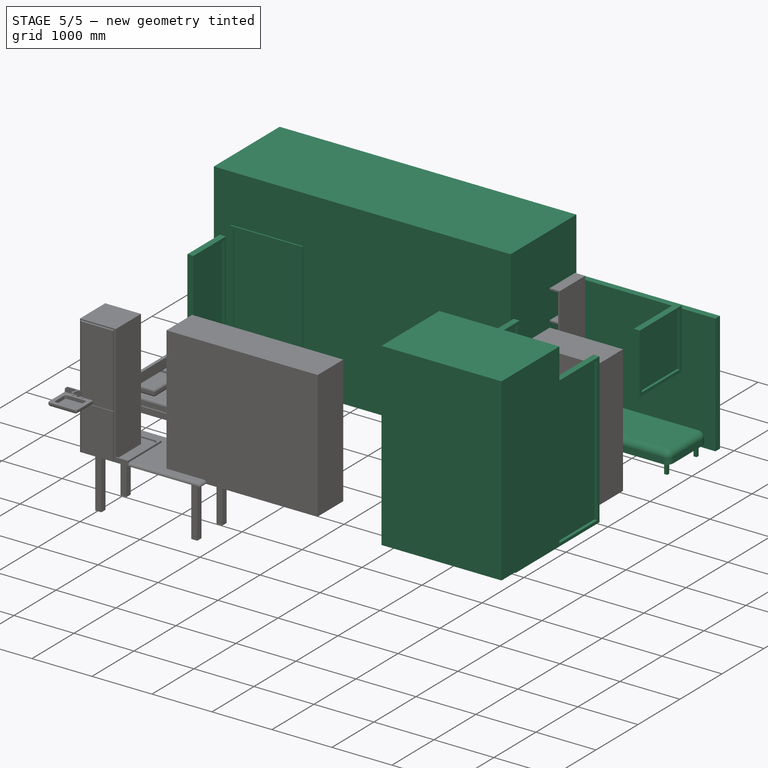
[diagram: stage 5 of 5 — iso view after this stage's code; geometry added in this stage tinted green]
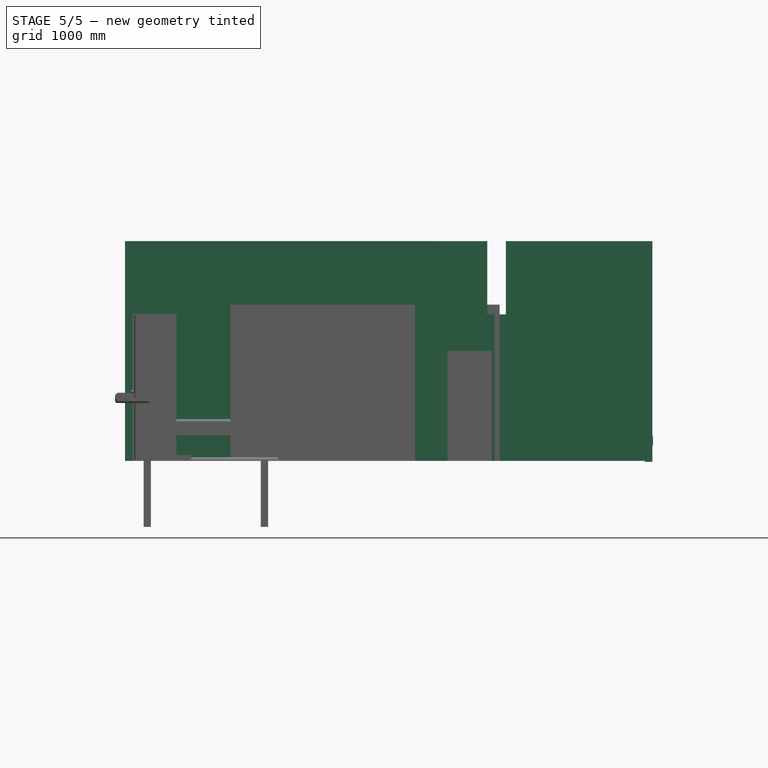
[diagram: stage 5 of 5 — front view after this stage's code; geometry added in this stage tinted green]
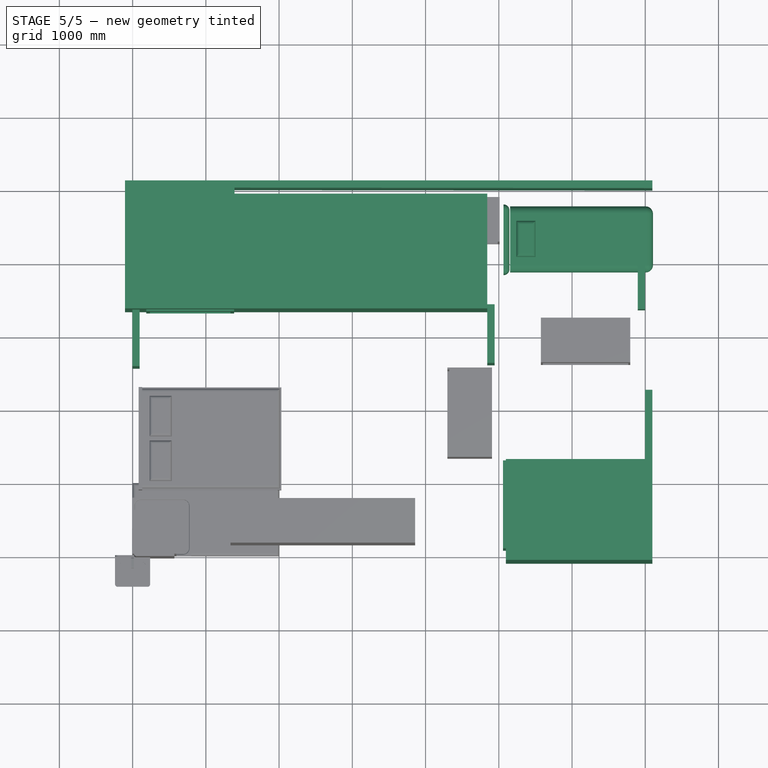
[diagram: stage 5 of 5 — top view after this stage's code; geometry added in this stage tinted green]
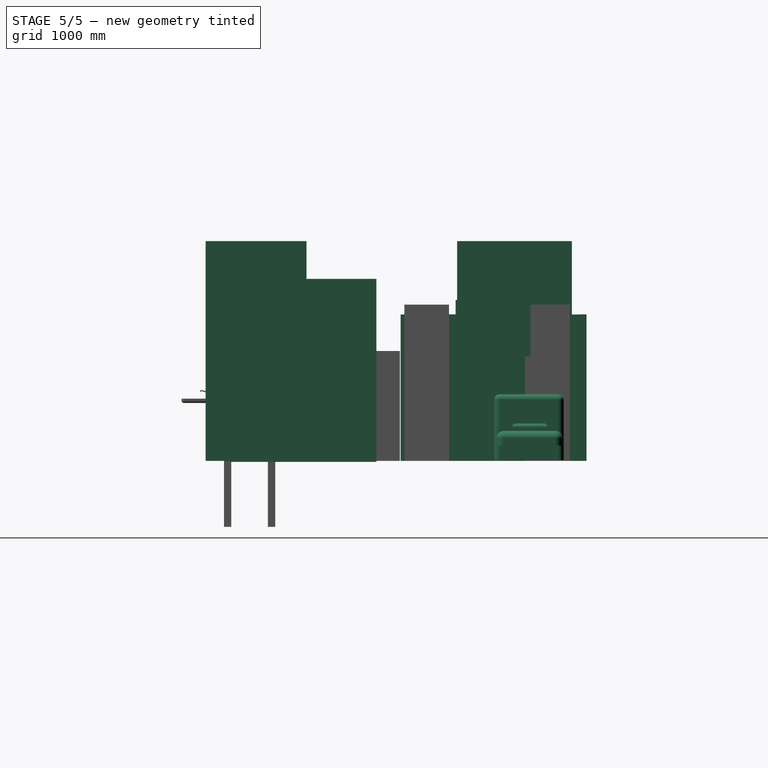
[diagram: stage 5 of 5 — right view after this stage's code; geometry added in this stage tinted green]
FEATURE [Part::Part2DObjectPython] Rectangle  # Draft 2D object (typed FeaturePython)
  Area = 0
  ChamferSize = 0
  Columns = 1
  FilletRadius = 0
  Height = 5000
  Length = 5000
  MakeFace = false
  Placement = pos=(-3.4,-0.6,0) rot=(0,0,1;0rad)
  Rows = 1
FEATURE [Part::Part2DObjectPython] Rectangle001  label="chambre"  # Draft 2D object (typed FeaturePython)
  Area = 0
  ChamferSize = 0
  Columns = 1
  FilletRadius = 0
  Height = 2500
  Length = 2000
  MakeFace = false
  Placement = pos=(4996.6,2500,0) rot=(0,0,1;0rad)
  Rows = 1
FEATURE [Part::Part2DObjectPython] Line  # Draft 2D object (typed FeaturePython)
  Area = 0
  ChamferSize = 0
  Closed = false
  End = (0,3507.71,0)
  FilletRadius = 0
  Length = 4996.6
  MakeFace = false
  Placement = pos=(4996.6,3507.71,0) rot=(0,0,1;0rad)
  Points = (2) [(0,0,0),(-4996.6,0.00418945,0)]
  Start = (4996.6,3507.71,0)
  Subdivisions = 0
FEATURE [Part::Part2DObjectPython] Line001  # Draft 2D object (typed FeaturePython)
  Area = 0
  ChamferSize = 0
  Closed = false
  End = (1490.39,3507.71,0)
  FilletRadius = 0
  Length = 1491.69
  MakeFace = false
  Placement = pos=(1491.8,4999.4,0) rot=(0,0,1;0rad)
  Points = (2) [(0,0,0),(-1.4187,-1491.69,0)]
  Start = (1491.8,4999.4,0)
  Subdivisions = 0
FEATURE [Sketcher::SketchObject] Sketch
  Placement = pos=(6896.6,4333.89,1425.96) rot=(0.57735,-0.57735,-0.57735;2.0944rad)
  sketch-geometry (8):
    g0: LineSegment StartX=0 StartY=0 StartZ=0 EndX=1000 EndY=0 EndZ=0
    g1: LineSegment StartX=1000 StartY=0 StartZ=0 EndX=1000 EndY=1000 EndZ=0
    g2: LineSegment StartX=1000 StartY=1000 StartZ=0 EndX=0 EndY=1000 EndZ=0
    g3: LineSegment StartX=0 StartY=1000 StartZ=0 EndX=0 EndY=0 EndZ=0
    g4: LineSegment StartX=50 StartY=50 StartZ=0 EndX=950 EndY=50 EndZ=0
    g5: LineSegment StartX=950 StartY=50 StartZ=0 EndX=950 EndY=950 EndZ=0
    g6: LineSegment StartX=950 StartY=950 StartZ=0 EndX=50 EndY=950 EndZ=0
    g7: LineSegment StartX=50 StartY=950 StartZ=0 EndX=50 EndY=50 EndZ=0
  constraints (23):
    c: Coincident(g0,g1)
    c: Coincident(g1,g2)
    c: Coincident(g2,g3)
    c: Coincident(g3,g0)
    c: Horizontal(g0)
    c: Horizontal(g2)
    c: Vertical(g1)
    c: Vertical(g3)
    c: Coincident(g4,g5)
    c: Coincident(g5,g6)
    c: Coincident(g6,g7)
    c: Coincident(g7,g4)
    c: Horizontal(g4)
    c: Horizontal(g6)
    c: Vertical(g5)
    c: Vertical(g7)
    c: DistanceY(g1) = 1000  'Height'
    c: DistanceX(g0) = 1000  'Width'
    c: DistanceY(g6,g2) = 50  'Frame1'
    c: DistanceX(g2,g6) = 50  'Frame2'
    c: DistanceX(g4,g0) = 50  'Frame3'
    c: DistanceY(g0,g4) = 50  'Frame4'
    c: Coincident(g0,g-1)
FEATURE [Sketcher::SketchObject] Sketch001
  Placement = pos=(96.6,2752.32,-0.2) rot=(0.57735,0.57735,0.57735;2.0944rad)
  sketch-geometry (8):
    g0: LineSegment StartX=0 StartY=0 StartZ=0 EndX=800 EndY=0 EndZ=0
    g1: LineSegment StartX=800 StartY=0 StartZ=0 EndX=800 EndY=2000 EndZ=0
    g2: LineSegment StartX=800 StartY=2000 StartZ=0 EndX=0 EndY=2000 EndZ=0
    g3: LineSegment StartX=0 StartY=2000 StartZ=0 EndX=0 EndY=0 EndZ=0
    g4: LineSegment StartX=50 StartY=50 StartZ=0 EndX=750 EndY=50 EndZ=0
    g5: LineSegment StartX=750 StartY=50 StartZ=0 EndX=750 EndY=1950 EndZ=0
    g6: LineSegment StartX=750 StartY=1950 StartZ=0 EndX=50 EndY=1950 EndZ=0
    g7: LineSegment StartX=50 StartY=1950 StartZ=0 EndX=50 EndY=50 EndZ=0
  constraints (23):
    c: Coincident(g0,g1)
    c: Coincident(g1,g2)
    c: Coincident(g2,g3)
    c: Coincident(g3,g0)
    c: Horizontal(g0)
    c: Horizontal(g2)
    c: Vertical(g1)
    c: Vertical(g3)
    c: Coincident(g4,g5)
    c: Coincident(g5,g6)
    c: Coincident(g6,g7)
    c: Coincident(g7,g4)
    c: Horizontal(g4)
    c: Horizontal(g6)
    c: Vertical(g5)
    c: Vertical(g7)
    c: DistanceY(g1) = 2000  'Height'
    c: DistanceX(g0) = 800  'Width'
    c: DistanceY(g6,g2) = 50  'Frame1'
    c: DistanceX(g2,g6) = 50  'Frame2'
    c: DistanceX(g4,g0) = 50  'Frame3'
    c: DistanceY(g0,g4) = 50  'Frame4'
    c: Coincident(g0,g-1)
FEATURE [Sketcher::SketchObject] Sketch002
  Placement = pos=(5056.6,1776.2,0) rot=(0.57735,-0.57735,-0.57735;2.0944rad)
  sketch-geometry (8):
    g0: LineSegment StartX=0 StartY=0 StartZ=0 EndX=1200 EndY=0 EndZ=0
    g1: LineSegment StartX=1200 StartY=0 StartZ=0 EndX=1200 EndY=2000 EndZ=0
    g2: LineSegment StartX=1200 StartY=2000 StartZ=0 EndX=0 EndY=2000 EndZ=0
    g3: LineSegment StartX=0 StartY=2000 StartZ=0 EndX=0 EndY=0 EndZ=0
    g4: LineSegment StartX=50 StartY=50 StartZ=0 EndX=1150 EndY=50 EndZ=0
    g5: LineSegment StartX=1150 StartY=50 StartZ=0 EndX=1150 EndY=1950 EndZ=0
    g6: LineSegment StartX=1150 StartY=1950 StartZ=0 EndX=50 EndY=1950 EndZ=0
    g7: LineSegment StartX=50 StartY=1950 StartZ=0 EndX=50 EndY=50 EndZ=0
  constraints (23):
    c: Coincident(g0,g1)
    c: Coincident(g1,g2)
    c: Coincident(g2,g3)
    c: Coincident(g3,g0)
    c: Horizontal(g0)
    c: Horizontal(g2)
    c: Vertical(g1)
    c: Vertical(g3)
    c: Coincident(g4,g5)
    c: Coincident(g5,g6)
    c: Coincident(g6,g7)
    c: Coincident(g7,g4)
    c: Horizontal(g4)
    c: Horizontal(g6)
    c: Vertical(g5)
    c: Vertical(g7)
    c: DistanceY(g1) = 2000  'Height'
    c: DistanceX(g0) = 1200  'Width'
    c: DistanceY(g6,g2) = 50  'Frame1'
    c: DistanceX(g2,g6) = 50  'Frame2'
    c: DistanceX(g4,g0) = 50  'Frame3'
    c: DistanceY(g0,g4) = 50  'Frame4'
    c: Coincident(g0,g-1)
FEATURE [Part::FeaturePython] Wall002  # Arch/BIM object (typed FeaturePython)
  Align = 2
  Base = -> Line
  BlockHeight = 0
  BlockLength = 0
  CountBroken = 0
  CountEntire = 0
  Face = 0
  Height = 3000
  HorizontalArea = 1.39932e+06
  IfcData = attributes={"PredefinedType": {"name": "PredefinedType", "type": "IfcWallTypeEnum", "is_enum": true, "enum_values": ["MOVABLE", "PA... (+154 chars omitted)
  IfcRole = 156
  Joint = 0
  Length = 4996.6
  MakeBlocks = false
  MoveBase = false
  MoveWithHost = false
  Normal = (0,0,0)
  OffsetFirst = 0
  OffsetSecond = 0
  PerimeterLength = 10393.2
  PredefinedType = 0
  VerticalArea = 2.47796e+07
  Width = 200
FEATURE [Sketcher::SketchObject] Sketch003
  Placement = pos=(186.6,3312.3,196.561) rot=(1,0,0;1.5708rad)
  sketch-geometry (8):
    g0: LineSegment StartX=0 StartY=0 StartZ=0 EndX=1200 EndY=0 EndZ=0
    g1: LineSegment StartX=1200 StartY=0 StartZ=0 EndX=1200 EndY=2000 EndZ=0
    g2: LineSegment StartX=1200 StartY=2000 StartZ=0 EndX=0 EndY=2000 EndZ=0
    g3: LineSegment StartX=0 StartY=2000 StartZ=0 EndX=0 EndY=0 EndZ=0
    g4: LineSegment StartX=50 StartY=50 StartZ=0 EndX=1150 EndY=50 EndZ=0
    g5: LineSegment StartX=1150 StartY=50 StartZ=0 EndX=1150 EndY=1950 EndZ=0
    g6: LineSegment StartX=1150 StartY=1950 StartZ=0 EndX=50 EndY=1950 EndZ=0
    g7: LineSegment StartX=50 StartY=1950 StartZ=0 EndX=50 EndY=50 EndZ=0
  constraints (23):
    c: Coincident(g0,g1)
    c: Coincident(g1,g2)
    c: Coincident(g2,g3)
    c: Coincident(g3,g0)
    c: Horizontal(g0)
    c: Horizontal(g2)
    c: Vertical(g1)
    c: Vertical(g3)
    c: Coincident(g4,g5)
    c: Coincident(g5,g6)
    c: Coincident(g6,g7)
    c: Coincident(g7,g4)
    c: Horizontal(g4)
    c: Horizontal(g6)
    c: Vertical(g5)
    c: Vertical(g7)
    c: DistanceY(g1) = 2000  'Height'
    c: DistanceX(g0) = 1200  'Width'
    c: DistanceY(g6,g2) = 50  'Frame1'
    c: DistanceX(g2,g6) = 50  'Frame2'
    c: DistanceX(g4,g0) = 50  'Frame3'
    c: DistanceY(g0,g4) = 50  'Frame4'
    c: Coincident(g0,g-1)
FEATURE [Part::FeaturePython] Window004  label="Fenêtre004"  # Arch/BIM object (typed FeaturePython)
  Area = 3750000
  Base = -> Sketch003
  Frame = 50
  Height = 2500
  HoleDepth = 0
  HoleWire = 0
  HorizontalArea = 0
  Hosts = -> [Wall002]
  IfcData = attributes={"OverallHeight": {"name": "OverallHeight", "type": "IfcPositiveLengthMeasure", "is_enum": false, "enum_values": [], "va... (+852 chars omitted)
  IfcRole = 160
  LouvreSpacing = 0
  LouvreWidth = 0
  MoveBase = false
  MoveWithHost = true
  Normal = (8.38461e-07,1,0)
  Opening = 0
  OverallHeight = 2500
  OverallWidth = 1500
  PartitioningType = 0
  PerimeterLength = 0
  PredefinedType = 0
  Preset = 1
  SymbolElevation = false
  SymbolPlan = false
  VerticalArea = 0
  Width = 1500
  WindowParts = OuterFrame | Frame | Wire0,Wire1 | 50.0+V | 0.00+V | Glass | Glass panel | Wire1 | 10.0 | 50.0+V
FEATURE [Part::FeaturePython] Wall003  # Arch/BIM object (typed FeaturePython)
  Additions = -> [Wall002]
  Align = 2
  Base = -> Line001
  BlockHeight = 0
  BlockLength = 0
  CountBroken = 0
  CountEntire = 0
  Face = 0
  Height = 3000
  HorizontalArea = 1.67766e+06
  IfcData = attributes={"PredefinedType": {"name": "PredefinedType", "type": "IfcWallTypeEnum", "is_enum": true, "enum_values": ["MOVABLE", "PA... (+154 chars omitted)
  IfcRole = 156
  Joint = 0
  Length = 1491.69
  MakeBlocks = false
  MoveBase = false
  MoveWithHost = false
  Normal = (0,0,0)
  OffsetFirst = 0
  OffsetSecond = 0
  PerimeterLength = 3383.38
  PredefinedType = 0
  VerticalArea = 3.31298e+07
  Width = 200
FEATURE [Sketcher::SketchObject] Sketch004
  Placement = pos=(4042.81,3407.71,47.9793) rot=(1,0,0;1.5708rad)
  sketch-geometry (8):
    g0: LineSegment StartX=0 StartY=-2.274e-13 StartZ=0 EndX=800 EndY=-2.274e-13 EndZ=0
    g1: LineSegment StartX=800 StartY=-2.274e-13 StartZ=0 EndX=800 EndY=2000 EndZ=0
    g2: LineSegment StartX=800 StartY=2000 StartZ=0 EndX=0 EndY=2000 EndZ=0
    g3: LineSegment StartX=0 StartY=2000 StartZ=0 EndX=0 EndY=-2.274e-13 EndZ=0
    g4: LineSegment StartX=50 StartY=50 StartZ=0 EndX=750 EndY=50 EndZ=0
    g5: LineSegment StartX=750 StartY=50 StartZ=0 EndX=750 EndY=1950 EndZ=0
    g6: LineSegment StartX=750 StartY=1950 StartZ=0 EndX=50 EndY=1950 EndZ=0
    g7: LineSegment StartX=50 StartY=1950 StartZ=0 EndX=50 EndY=50 EndZ=0
  constraints (23):
    c: Coincident(g0,g1)
    c: Coincident(g1,g2)
    c: Coincident(g2,g3)
    c: Coincident(g3,g0)
    c: Horizontal(g0)
    c: Horizontal(g2)
    c: Vertical(g1)
    c: Vertical(g3)
    c: Coincident(g4,g5)
    c: Coincident(g5,g6)
    c: Coincident(g6,g7)
    c: Coincident(g7,g4)
    c: Horizontal(g4)
    c: Horizontal(g6)
    c: Vertical(g5)
    c: Vertical(g7)
    c: DistanceY(g1) = 2000  'Height'
    c: DistanceX(g0) = 800  'Width'
    c: DistanceY(g6,g2) = 50  'Frame1'
    c: DistanceX(g2,g6) = 50  'Frame2'
    c: DistanceX(g4,g0) = 50  'Frame3'
    c: DistanceY(g0,g4) = 50  'Frame4'
    c: Coincident(g0,g-1)
FEATURE [Part::FeaturePython] Window005  label="Fenêtre005"  # Arch/BIM object (typed FeaturePython)
  Area = 1600000
  Base = -> Sketch004
  Frame = 50
  Height = 2000
  HoleDepth = 0
  HoleWire = 0
  HorizontalArea = 0
  Hosts = -> [Wall002]
  IfcData = attributes={"OverallHeight": {"name": "OverallHeight", "type": "IfcPositiveLengthMeasure", "is_enum": false, "enum_values": [], "va... (+851 chars omitted)
  IfcRole = 160
  LouvreSpacing = 0
  LouvreWidth = 0
  MoveBase = false
  MoveWithHost = true
  Normal = (8.38461e-07,1,0)
  Opening = 0
  OverallHeight = 2000
  OverallWidth = 800
  PartitioningType = 0
  PerimeterLength = 0
  PredefinedType = 0
  Preset = 1
  SymbolElevation = false
  SymbolPlan = false
  VerticalArea = 0
  Width = 800
  WindowParts = OuterFrame | Frame | Wire0,Wire1 | 50.0+V | 0.00+V | Glass | Glass panel | Wire1 | 10.0 | 50.0+V
FEATURE [Sketcher::SketchObject] Sketch005
  Placement = pos=(4842.81,3407.71,0) rot=(0.57735,-0.57735,-0.57735;2.0944rad)
  sketch-geometry (8):
    g0: LineSegment StartX=0 StartY=0 StartZ=0 EndX=800 EndY=0 EndZ=0
    g1: LineSegment StartX=800 StartY=0 StartZ=0 EndX=800 EndY=2000 EndZ=0
    g2: LineSegment StartX=800 StartY=2000 StartZ=0 EndX=0 EndY=2000 EndZ=0
    g3: LineSegment StartX=0 StartY=2000 StartZ=0 EndX=0 EndY=0 EndZ=0
    g4: LineSegment StartX=50 StartY=50 StartZ=0 EndX=750 EndY=50 EndZ=0
    g5: LineSegment StartX=750 StartY=50 StartZ=0 EndX=750 EndY=1950 EndZ=0
    g6: LineSegment StartX=750 StartY=1950 StartZ=0 EndX=50 EndY=1950 EndZ=0
    g7: LineSegment StartX=50 StartY=1950 StartZ=0 EndX=50 EndY=50 EndZ=0
  constraints (23):
    c: Coincident(g0,g1)
    c: Coincident(g1,g2)
    c: Coincident(g2,g3)
    c: Coincident(g3,g0)
    c: Horizontal(g0)
    c: Horizontal(g2)
    c: Vertical(g1)
    c: Vertical(g3)
    c: Coincident(g4,g5)
    c: Coincident(g5,g6)
    c: Coincident(g6,g7)
    c: Coincident(g7,g4)
    c: Horizontal(g4)
    c: Horizontal(g6)
    c: Vertical(g5)
    c: Vertical(g7)
    c: DistanceY(g1) = 2000  'Height'
    c: DistanceX(g0) = 800  'Width'
    c: DistanceY(g6,g2) = 50  'Frame1'
    c: DistanceX(g2,g6) = 50  'Frame2'
    c: DistanceX(g4,g0) = 50  'Frame3'
    c: DistanceY(g0,g4) = 50  'Frame4'
    c: Coincident(g0,g-1)
FEATURE [Part::Part2DObjectPython] Rectangle002  label="terrasse"  # Draft 2D object (typed FeaturePython)
  Area = 0
  ChamferSize = 0
  Columns = 1
  FilletRadius = 0
  Height = 2500.6
  Length = 1994.94
  MakeFace = false
  Placement = pos=(5001.66,-0.6,0) rot=(0,0,1;0rad)
  Rows = 1
FEATURE [Part::FeaturePython] Wall004  # Arch/BIM object (typed FeaturePython)
  Align = 2
  Base = -> Rectangle002
  BlockHeight = 0
  BlockLength = 0
  CountBroken = 0
  CountEntire = 0
  Face = 0
  Height = 3000
  HorizontalArea = 1.79822e+06
  IfcData = attributes={"PredefinedType": {"name": "PredefinedType", "type": "IfcWallTypeEnum", "is_enum": true, "enum_values": ["MOVABLE", "PA... (+154 chars omitted)
  IfcRole = 156
  Joint = 0
  Length = 8991.08
  MakeBlocks = false
  MoveBase = false
  MoveWithHost = false
  Normal = (0,0,0)
  OffsetFirst = 0
  OffsetSecond = 0
  PerimeterLength = 9791.08
  PredefinedType = 0
  VerticalArea = 3.6047e+07
  Width = 200
FEATURE [Sketcher::SketchObject] Sketch006
  Placement = pos=(7096.6,231.519,-13.9647) rot=(0.57735,0.57735,0.57735;2.0944rad)
  sketch-geometry (8):
    g0: LineSegment StartX=0 StartY=0 StartZ=0 EndX=2000 EndY=0 EndZ=0
    g1: LineSegment StartX=2000 StartY=0 StartZ=0 EndX=2000 EndY=2500 EndZ=0
    g2: LineSegment StartX=2000 StartY=2500 StartZ=0 EndX=0 EndY=2500 EndZ=0
    g3: LineSegment StartX=0 StartY=2500 StartZ=0 EndX=0 EndY=0 EndZ=0
    g4: LineSegment StartX=50 StartY=50 StartZ=0 EndX=1950 EndY=50 EndZ=0
    g5: LineSegment StartX=1950 StartY=50 StartZ=0 EndX=1950 EndY=2450 EndZ=0
    g6: LineSegment StartX=1950 StartY=2450 StartZ=0 EndX=50 EndY=2450 EndZ=0
    g7: LineSegment StartX=50 StartY=2450 StartZ=0 EndX=50 EndY=50 EndZ=0
  constraints (23):
    c: Coincident(g0,g1)
    c: Coincident(g1,g2)
    c: Coincident(g2,g3)
    c: Coincident(g3,g0)
    c: Horizontal(g0)
    c: Horizontal(g2)
    c: Vertical(g1)
    c: Vertical(g3)
    c: Coincident(g4,g5)
    c: Coincident(g5,g6)
    c: Coincident(g6,g7)
    c: Coincident(g7,g4)
    c: Horizontal(g4)
    c: Horizontal(g6)
    c: Vertical(g5)
    c: Vertical(g7)
    c: DistanceY(g1) = 2500  'Height'
    c: DistanceX(g0) = 2000  'Width'
    c: DistanceY(g6,g2) = 50  'Frame1'
    c: DistanceX(g2,g6) = 50  'Frame2'
    c: DistanceX(g4,g0) = 50  'Frame3'
    c: DistanceY(g0,g4) = 50  'Frame4'
    c: Coincident(g0,g-1)
FEATURE [Part::FeaturePython] Window007  label="Fenêtre007"  # Arch/BIM object (typed FeaturePython)
  Area = 5000000
  Base = -> Sketch006
  Frame = 50
  Height = 2500
  HoleDepth = 0
  HoleWire = 0
  HorizontalArea = 0
  Hosts = -> [Wall004]
  IfcData = attributes={"OverallHeight": {"name": "OverallHeight", "type": "IfcPositiveLengthMeasure", "is_enum": false, "enum_values": [], "va... (+852 chars omitted)
  IfcRole = 160
  LouvreSpacing = 0
  LouvreWidth = 0
  MoveBase = false
  MoveWithHost = true
  Normal = (-1,0,0)
  Opening = 0
  OverallHeight = 2500
  OverallWidth = 2000
  PartitioningType = 0
  PerimeterLength = 0
  PredefinedType = 0
  Preset = 1
  SymbolElevation = false
  SymbolPlan = false
  VerticalArea = 0
  Width = 2000
  WindowParts = OuterFrame | Frame | Wire0,Wire1 | 50.0+V | 0.00+V | Glass | Glass panel | Wire1 | 10.0 | 50.0+V
FEATURE [PartDesign::Pad] Pad009
  Length = 900
  Length2 = 100
  Profile = -> Sketch185
  Type = 0
FEATURE [PartDesign::Fillet] Fillet008
  Base = -> Pad009 [Edge10]
  BaseFeature = -> Pad009
  Radius = 75
FEATURE [PartDesign::Fillet] Fillet003
  Base = -> Fillet008 [Edge8]
  BaseFeature = -> Fillet008
  Radius = 75
FEATURE [PartDesign::Fillet] Fillet004
  Base = -> Fillet003 [Edge3]
  BaseFeature = -> Fillet003
  Radius = 75
FEATURE [Sketcher::SketchObject] Sketch184  label="Sketch185"
  MapMode = 5
  Placement = pos=(0,0,200) rot=(0,0,1;0rad)
  Support = -> [Fillet006]
  sketch-geometry (4):
    g0: LineSegment StartX=209.807 StartY=1864.93 StartZ=0 EndX=699.707 EndY=1864.93 EndZ=0
    g1: LineSegment StartX=699.707 StartY=1864.93 StartZ=0 EndX=699.707 EndY=1603.65 EndZ=0
    g2: LineSegment StartX=699.707 StartY=1603.65 StartZ=0 EndX=209.807 EndY=1603.65 EndZ=0
    g3: LineSegment StartX=209.807 StartY=1603.65 StartZ=0 EndX=209.807 EndY=1864.93 EndZ=0
  constraints (8):
    c: Coincident(g0,g1)
    c: Coincident(g1,g2)
    c: Coincident(g2,g3)
    c: Coincident(g3,g0)
    c: Horizontal(g0)
    c: Horizontal(g2)
    c: Vertical(g1)
    c: Vertical(g3)
FEATURE [PartDesign::Pad] Pad010
  BaseFeature = -> Fillet006
  Length = 100
  Length2 = 100
  Profile = -> Sketch184
  Type = 0
FEATURE [PartDesign::Fillet] Fillet007
  Base = -> Pad010 [Face38]
  BaseFeature = -> Pad010
  Radius = 50
FEATURE [PartDesign::Body] Body007  label="Bed"
  Group = -> [Sketch182,Pad007,Sketch183,Pad008,Fillet009,Fillet005,Fillet006,Sketch184,Pad010,Fillet007]
  Origin = -> Origin007
  Tip = -> Fillet007
FEATURE [Part::MultiFuse] Fusion003  label="SingleBed_900x2000mm"
  Placement = pos=(7105,3873,210) rot=(0,0,1;1.5708rad)
  Shapes = -> [Body007,Body008]
FEATURE [App::DocumentObjectGroup] Group  label="Groupe"
  Group = -> [Fusion003,Body,Cut003,Body009,Cut004,Compound,Cut005,Body010,Body011,Body012,Cut009]
FEATURE [Part::Part2DObjectPython] Wire  # Draft 2D object (typed FeaturePython)
  ChamferSize = 0
  Closed = false
  End = (1490.95,4097.13,0)
  FilletRadius = 0
  Length = 1804.47
  MakeFace = false
  Placement = pos=(2398.55,4999.4,0) rot=(0,0,1;0rad)
  Points = (3) [(0,0,0),(0.44873,-896.4,0),(-907.606,-902.274,0)]
  Start = (2398.55,4999.4,0)
  Subdivisions = 0
FEATURE [Part::FeaturePython] Wall005  # Arch/BIM object (typed FeaturePython)
  Align = 2
  Base = -> Wire
  BlockHeight = 0
  BlockLength = 0
  CountBroken = 0
  CountEntire = 0
  Face = 0
  Height = 3000
  HorizontalArea = 36089.5
  IfcRole = 156
  Joint = 0
  Length = 1804.47
  MakeBlocks = false
  MoveWithHost = false
  Normal = (0,0,0)
  OffsetFirst = 0
  OffsetSecond = 0
  PerimeterLength = 3648.95
  VerticalArea = 1.09468e+07
  Width = 20
FEATURE [Part::FeaturePython] Wall  # Arch/BIM object (typed FeaturePython)
  Additions = -> [Wall003,Wall001,Wall005]
  Align = 2
  Base = -> Rectangle001
  BlockHeight = 0
  BlockLength = 0
  CountBroken = 0
  CountEntire = 0
  Face = 0
  Height = 3000
  HorizontalArea = 2e+06
  IfcData = attributes={"PredefinedType": {"name": "PredefinedType", "type": "IfcWallTypeEnum", "is_enum": true, "enum_values": ["MOVABLE", "PA... (+154 chars omitted)
  IfcRole = 156
  Joint = 0
  Length = 9000
  MakeBlocks = false
  MoveBase = false
  MoveWithHost = false
  Normal = (0,0,0)
  OffsetFirst = 0
  OffsetSecond = 0
  PerimeterLength = 9800
  PredefinedType = 0
  VerticalArea = 52400000
  Width = 100
FEATURE [Part::FeaturePython] Wall001  # Arch/BIM object (typed FeaturePython)
  Additions = -> [Wall004,Wall,Wall003]
  Align = 2
  Base = -> Rectangle
  BlockHeight = 0
  BlockLength = 0
  CountBroken = 0
  CountEntire = 0
  Face = 0
  Height = 3000
  HorizontalArea = 4.56e+06
  IfcData = attributes={"PredefinedType": {"name": "PredefinedType", "type": "IfcWallTypeEnum", "is_enum": true, "enum_values": ["MOVABLE", "PA... (+154 chars omitted)
  IfcRole = 156
  Joint = 0
  Length = 20000
  MakeBlocks = false
  MoveBase = false
  MoveWithHost = false
  Normal = (0,0,0)
  OffsetFirst = 0
  OffsetSecond = 0
  PerimeterLength = 20800
  PredefinedType = 0
  VerticalArea = 110400000
  Width = 200
FEATURE [Part::FeaturePython] Window  label="Fenêtre"  # Arch/BIM object (typed FeaturePython)
  Area = 1000000
  Base = -> Sketch
  Frame = 50
  Height = 1000
  HoleDepth = 0
  HoleWire = 0
  HorizontalArea = 0
  Hosts = -> [Wall]
  IfcData = attributes={"OverallHeight": {"name": "OverallHeight", "type": "IfcPositiveLengthMeasure", "is_enum": false, "enum_values": [], "va... (+852 chars omitted)
  IfcRole = 160
  LouvreSpacing = 0
  LouvreWidth = 0
  MoveBase = false
  MoveWithHost = true
  Normal = (1,0,0)
  Opening = 0
  OverallHeight = 1000
  OverallWidth = 1000
  PartitioningType = 0
  PerimeterLength = 0
  PredefinedType = 0
  Preset = 1
  SymbolElevation = false
  SymbolPlan = false
  VerticalArea = 0
  Width = 1000
  WindowParts = OuterFrame | Frame | Wire0,Wire1 | 50.0+V | 0.00+V | Glass | Glass panel | Wire1 | 10.0 | 50.0+V
FEATURE [Part::FeaturePython] Window001  label="Fenêtre001"  # Arch/BIM object (typed FeaturePython)
  Area = 1000000
  Base = -> Sketch001
  Frame = 50
  Height = 2000
  HoleDepth = 0
  HoleWire = 0
  HorizontalArea = 0
  Hosts = -> [Wall001]
  IfcData = attributes={"OverallHeight": {"name": "OverallHeight", "type": "IfcPositiveLengthMeasure", "is_enum": false, "enum_values": [], "va... (+851 chars omitted)
  IfcRole = 160
  LouvreSpacing = 0
  LouvreWidth = 0
  MoveBase = false
  MoveWithHost = true
  Normal = (-1,0,0)
  Opening = 0
  OverallHeight = 2000
  OverallWidth = 500
  PartitioningType = 0
  PerimeterLength = 0
  Placement = pos=(0,-190,0) rot=(0,0,1;0rad)
  PredefinedType = 0
  Preset = 1
  SymbolElevation = false
  SymbolPlan = false
  VerticalArea = 0
  Width = 500
  WindowParts = OuterFrame | Frame | Wire0,Wire1 | 50.0+V | 0.00+V | Glass | Glass panel | Wire1 | 10.0 | 50.0+V
FEATURE [Part::FeaturePython] Window002  label="Fenêtre002"  # Arch/BIM object (typed FeaturePython)
  Area = 4000000
  Base = -> Sketch002
  Frame = 50
  Height = 2000
  HoleDepth = 0
  HoleWire = 0
  HorizontalArea = 0
  Hosts = -> [Wall001]
  IfcData = attributes={"OverallHeight": {"name": "OverallHeight", "type": "IfcPositiveLengthMeasure", "is_enum": false, "enum_values": [], "va... (+852 chars omitted)
  IfcRole = 160
  LouvreSpacing = 0
  LouvreWidth = 0
  MoveBase = false
  MoveWithHost = true
  Normal = (1,0,0)
  Opening = 0
  OverallHeight = 2000
  OverallWidth = 1700
  PartitioningType = 0
  PerimeterLength = 0
  Placement = pos=(0,-500,0) rot=(0,0,1;0rad)
  PredefinedType = 0
  Preset = 1
  SymbolElevation = false
  SymbolPlan = false
  VerticalArea = 0
  Width = 2000
  WindowParts = OuterFrame | Frame | Wire0,Wire1 | 50.0+V | 0.00+V | Glass | Glass panel | Wire1 | 10.0 | 50.0+V
FEATURE [Part::FeaturePython] Window006  label="Fenêtre006"  # Arch/BIM object (typed FeaturePython)
  Area = 1600000
  Base = -> Sketch005
  Frame = 50
  Height = 2000
  HoleDepth = 0
  HoleWire = 0
  HorizontalArea = 0
  Hosts = -> [Wall001]
  IfcData = attributes={"OverallHeight": {"name": "OverallHeight", "type": "IfcPositiveLengthMeasure", "is_enum": false, "enum_values": [], "va... (+851 chars omitted)
  IfcRole = 160
  LouvreSpacing = 0
  LouvreWidth = 0
  MoveBase = false
  MoveWithHost = true
  Normal = (1,0,0)
  Opening = 0
  OverallHeight = 2000
  OverallWidth = 800
  PartitioningType = 0
  PerimeterLength = 0
  PredefinedType = 0
  Preset = 1
  SymbolElevation = false
  SymbolPlan = false
  VerticalArea = 0
  Width = 800
  WindowParts = OuterFrame | Frame | Wire0,Wire1 | 50.0+V | 0.00+V | Glass | Glass panel | Wire1 | 10.0 | 50.0+V
FEATURE [Part::FeaturePython] Space001  label="sejour"  # Arch/BIM object (typed FeaturePython)
  Area = 4.69832e+06
  AutoPower = false
  Boundaries = -> [Wall]
  CompositionType = 0
  Conditioning = 0
  ElevationWithFlooring = -4.97e-14
  EquipmentPower = 0
  FloorThickness = 0
  HorizontalArea = 0
  IfcData = attributes={"PredefinedType": {"name": "PredefinedType", "type": "IfcSpaceTypeEnum", "is_enum": true, "enum_values": ["SPACE", "PAR... (+528 chars omitted)
  IfcRole = 120
  Internal = true
  LightingPower = 0
  LongName = Space001
  MoveBase = false
  MoveWithHost = false
  NumberOfPeople = 0
  PerimeterLength = 13024.6
  PredefinedType = 0
  SpaceType = 0
  VerticalArea = 3.90739e+07
FEATURE [Part::FeaturePython] Space  label="cuisine"  # Arch/BIM object (typed FeaturePython)
  Area = 2.23036e+06
  AutoPower = false
  Boundaries = -> [Wall003,Wall001,Wall002]
  CompositionType = 0
  Conditioning = 0
  ElevationWithFlooring = -1.137e-13
  EquipmentPower = 0
  FloorThickness = 0
  HorizontalArea = 0
  IfcData = attributes={"PredefinedType": {"name": "PredefinedType", "type": "IfcSpaceTypeEnum", "is_enum": true, "enum_values": ["SPACE", "PAR... (+526 chars omitted)
  IfcRole = 120
  Internal = true
  LightingPower = 0
  LongName = Space
  MoveBase = false
  MoveWithHost = false
  NumberOfPeople = 0
  PerimeterLength = 5973.76
  PredefinedType = 0
  SpaceType = 0
  VerticalArea = 1.79213e+07
FEATURE [Part::FeaturePython] Space002  label="salle de bain"  # Arch/BIM object (typed FeaturePython)
  Area = 716882
  AutoPower = false
  Boundaries = -> [Wall001,Wall,Wall002,Wall003]
  CompositionType = 0
  Conditioning = 0
  ElevationWithFlooring = -1.386e-13
  EquipmentPower = 0
  FloorThickness = 0
  HorizontalArea = 0
  IfcData = attributes={"PredefinedType": {"name": "PredefinedType", "type": "IfcSpaceTypeEnum", "is_enum": true, "enum_values": ["SPACE", "PAR... (+526 chars omitted)
  IfcRole = 120
  Internal = true
  LightingPower = 0
  LongName = Space
  MoveBase = false
  MoveWithHost = false
  NumberOfPeople = 0
  PerimeterLength = 14204.8
  PredefinedType = 0
  SpaceType = 0
  VerticalArea = 4.26145e+07
FEATURE [Part::FeaturePython] Space003  label="terrasse001"  # Arch/BIM object (typed FeaturePython)
  Area = 6e+06
  AutoPower = false
  Boundaries = -> [Wall]
  CompositionType = 0
  Conditioning = 0
  ElevationWithFlooring = -4.97e-14
  EquipmentPower = 0
  FloorThickness = 0
  HorizontalArea = 0
  IfcData = attributes={"PredefinedType": {"name": "PredefinedType", "type": "IfcSpaceTypeEnum", "is_enum": true, "enum_values": ["SPACE", "PAR... (+525 chars omitted)
  IfcRole = 120
  Internal = true
  LightingPower = 0
  LongName = Space
  MoveBase = false
  MoveWithHost = false
  NumberOfPeople = 0
  PerimeterLength = 6753.6
  PredefinedType = 0
  SpaceType = 0
  VerticalArea = 2.02608e+07
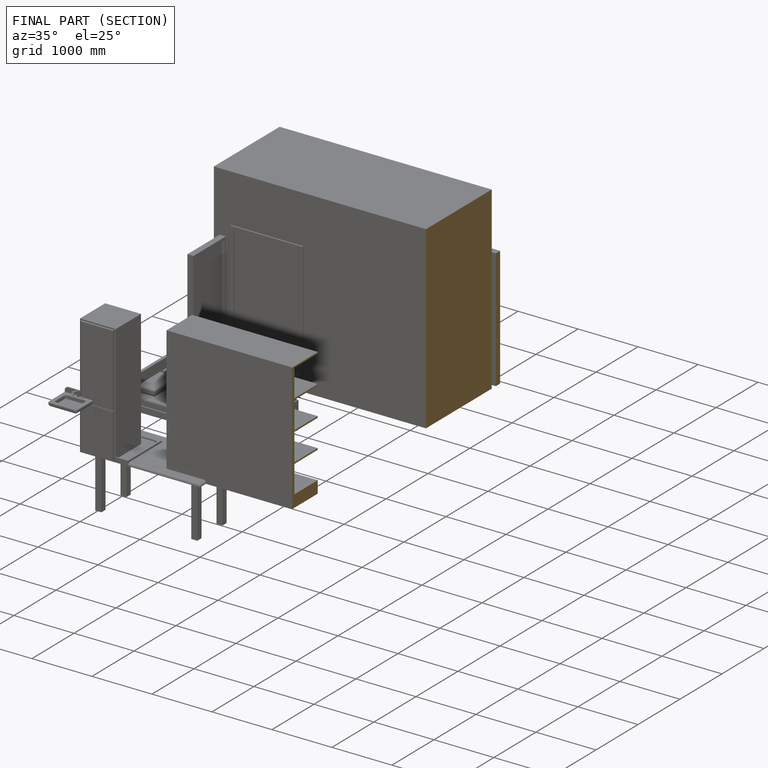
[diagram: finished part — half-section view (interior)]
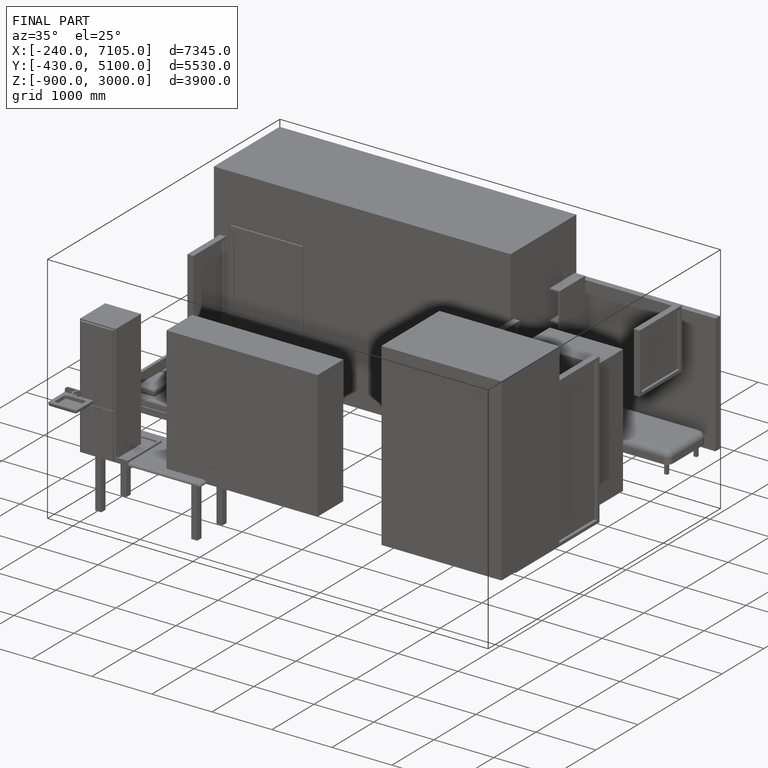
[diagram: finished part — iso view with bounding-box wireframe]
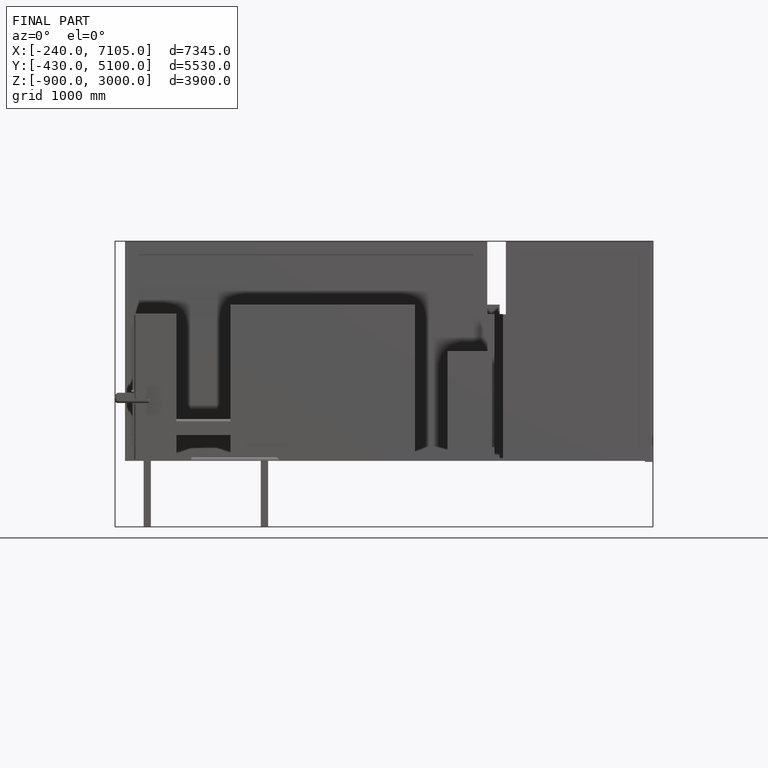
[diagram: finished part — front view with bounding-box wireframe]
